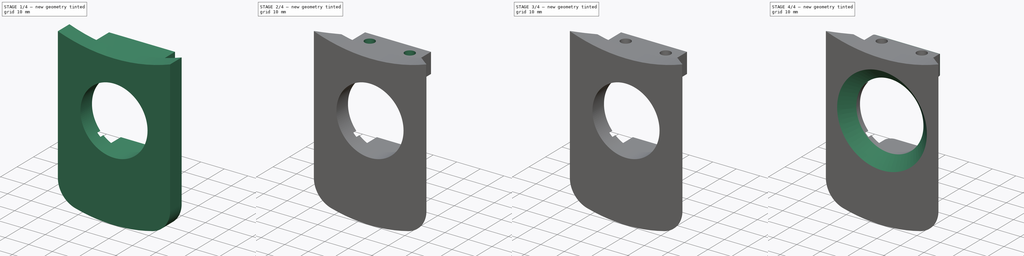
[diagram: build sequence overview — one tinted view per stage of 4, left to right]
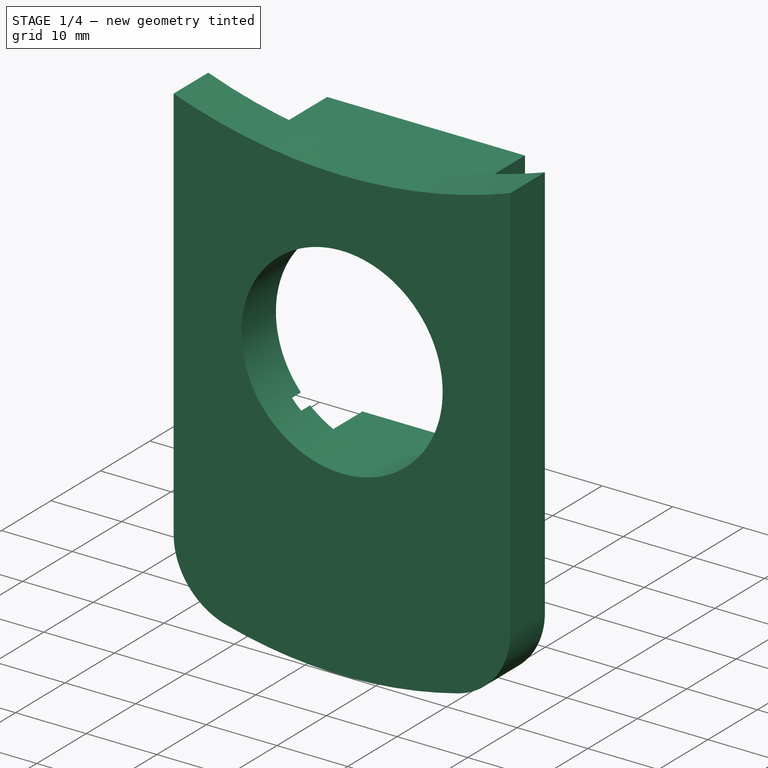
[diagram: stage 1 of 4 — iso view after this stage's code; geometry added in this stage tinted green]
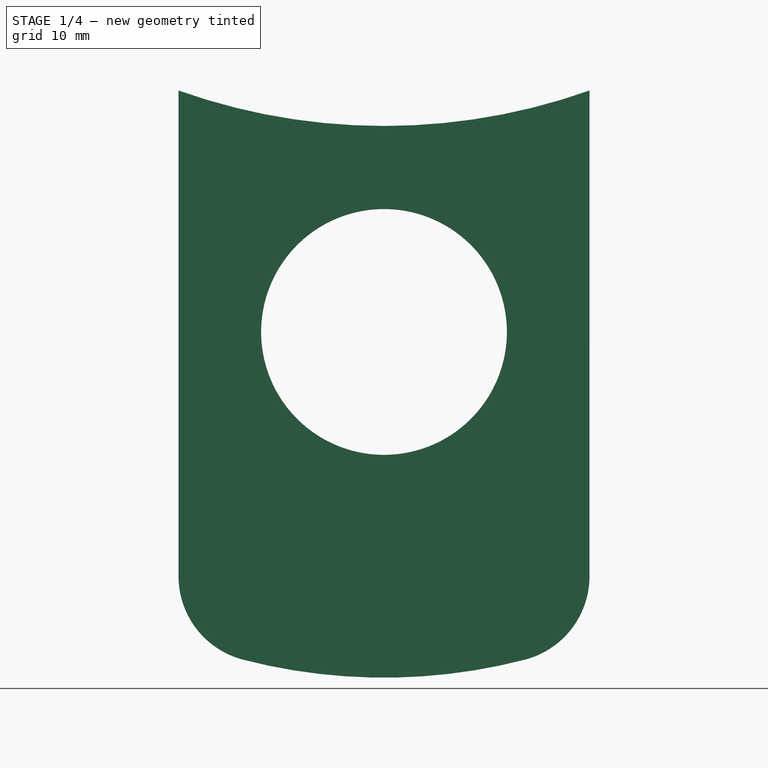
[diagram: stage 1 of 4 — front view after this stage's code; geometry added in this stage tinted green]
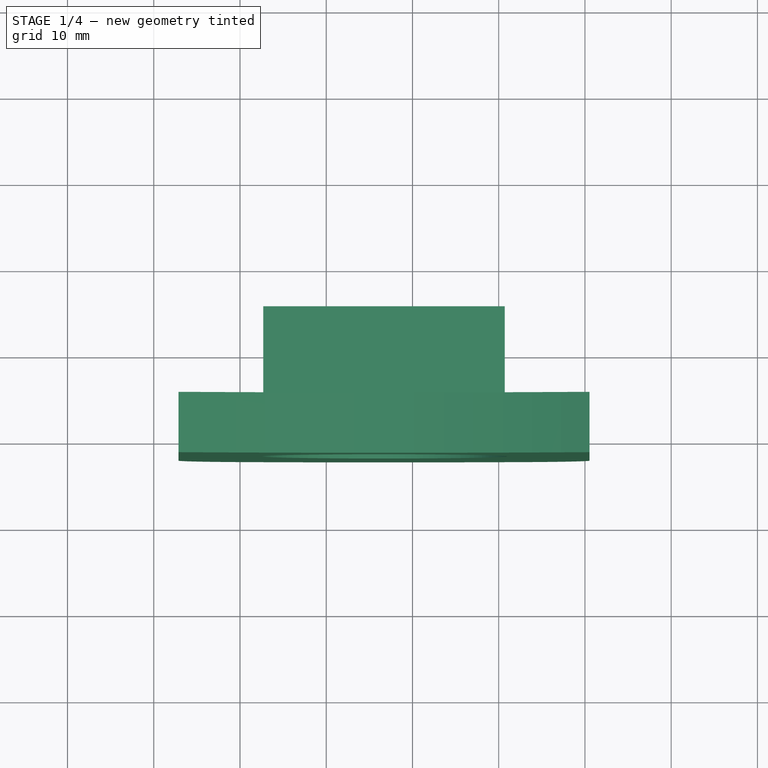
[diagram: stage 1 of 4 — top view after this stage's code; geometry added in this stage tinted green]
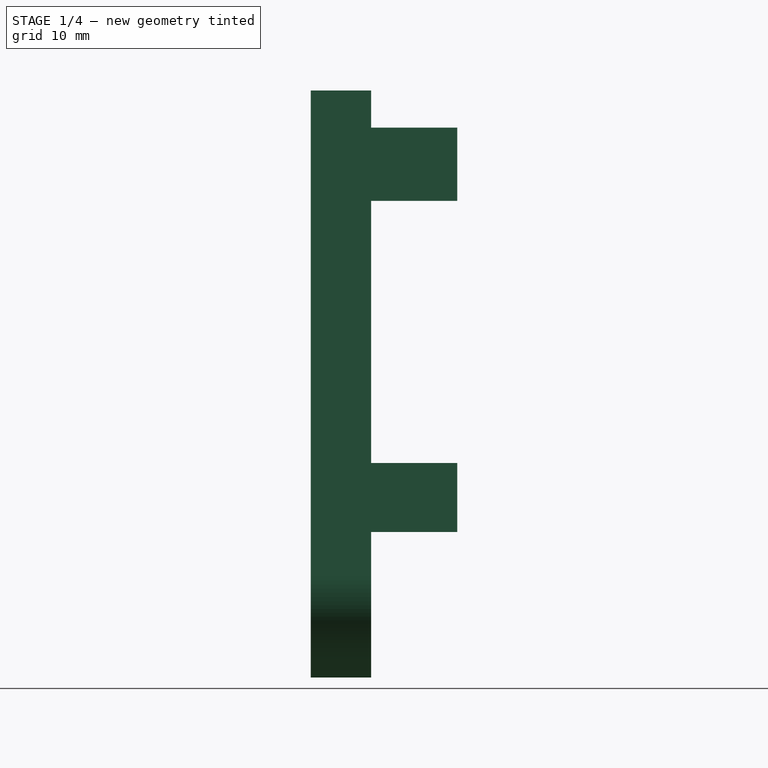
[diagram: stage 1 of 4 — right view after this stage's code; geometry added in this stage tinted green]
FCSTD DOCUMENT  (FreeCAD 2023.811R14555 (Git shallow))
Label: MantisFrontPlate_v3
License: All rights reserved
objects: Part::Feature×63, App::Link×42, App::Part×16, Sketcher::SketchObject×8, PartDesign::Pocket×6, PartDesign::Chamfer×3, PartDesign::SubShapeBinder×2, PartDesign::Pad×2, Part::SubShapeBinder×1, PartDesign::Plane×1, PartDesign::Point×1, PartDesign::Fillet×1, PartDesign::Body×1
note: 121 computed .brp shape members not serialized (recipe doc carries the construction recipe); baked Part::Feature solids carry a one-line shape summary decoded from their .brp

FEATURE [Part::Feature] Solid  label="0"
  InvalidShape = false
  Placement = pos=(-53.2558,-1.776e-13,-2.7501) rot=(0,0,1;0rad)
  TreeRank = 12
  ValidateShape = false
  shape: bbox 45 x 17.4 x 15 mm, 83 faces (baked)
FEATURE [Part::Feature] Solid001  label="0 (2)"
  InvalidShape = false
  Placement = pos=(-17.5188,-1.421e-13,21.1714) rot=(0,-1,0;0.087266rad)
  TreeRank = 13
  ValidateShape = false
  shape: bbox 34.02 x 17.4 x 21.19 mm, 92 faces (baked)
FEATURE [Part::Feature] Solid002  label="0 (3)"
  InvalidShape = false
  Placement = pos=(-43.5707,-1.776e-13,-62.3908) rot=(0,1,0;0.366519rad)
  TreeRank = 14
  ValidateShape = false
  shape: bbox 25.82 x 17.4 x 31.82 mm, 92 faces (baked)
FEATURE [Part::Feature] Solid003  label="0 (4)"
  InvalidShape = false
  Placement = pos=(-49.6833,-2.487e-13,-74.6632) rot=(0,1,0;0.436332rad)
  TreeRank = 15
  ValidateShape = false
  shape: bbox 24.52 x 17.4 x 32.59 mm, 92 faces (baked)
FEATURE [Part::Feature] Solid004  label="0 (5)"
  InvalidShape = false
  Placement = pos=(1e-06,-7.11e-14,6) rot=(0,0,1;0rad)
  TreeRank = 16
  ValidateShape = false
  shape: bbox 35 x 17.4 x 15 mm, 92 faces (baked)
FEATURE [Part::Feature] Solid005  label="0 (6)"
  InvalidShape = false
  Placement = pos=(-352.5,-1.066e-13,42) rot=(0,1,0;3.14159rad)
  TreeRank = 17
  ValidateShape = false
  shape: bbox 35 x 17.4 x 15 mm, 92 faces (baked)
FEATURE [Part::Feature] Solid006  label="0 (7)"
  InvalidShape = false
  Placement = pos=(-56.3151,-2.132e-13,-31.8577) rot=(0,1,0;0.20944rad)
  TreeRank = 18
  ValidateShape = false
  shape: bbox 34.56 x 17.4 x 19.16 mm, 92 faces (baked)
FEATURE [Part::Feature] Solid007  label="0 (8)"
  InvalidShape = false
  Placement = pos=(-53.2558,-1.776e-13,-2.7501) rot=(0,0,1;0rad)
  TreeRank = 19
  ValidateShape = false
  shape: bbox 35 x 17.4 x 15 mm, 92 faces (baked)
FEATURE [Part::Feature] Solid008  label="0 (9)"
  InvalidShape = false
  Placement = pos=(-53.2558,-1.776e-13,-2.7501) rot=(0,0,1;0rad)
  TreeRank = 20
  ValidateShape = false
  shape: bbox 35 x 17.4 x 15 mm, 92 faces (baked)
FEATURE [Part::Feature] Solid009  label="0 (10)"
  InvalidShape = false
  Placement = pos=(-53.2558,-1.776e-13,-2.7501) rot=(0,0,1;0rad)
  TreeRank = 21
  ValidateShape = false
  shape: bbox 35 x 17.4 x 15 mm, 92 faces (baked)
FEATURE [Part::Feature] Solid010  label="0 (11)"
  InvalidShape = false
  Placement = pos=(-53.2558,-1.776e-13,-2.7501) rot=(0,0,1;0rad)
  TreeRank = 22
  ValidateShape = false
  shape: bbox 35 x 17.4 x 15 mm, 92 faces (baked)
FEATURE [Part::Feature] Solid011  label="0 (12)"
  InvalidShape = false
  Placement = pos=(-53.2558,-1.776e-13,-2.7501) rot=(0,0,1;0rad)
  TreeRank = 43
  ValidateShape = false
  shape: bbox 35 x 17.4 x 15 mm, 92 faces (baked)
FEATURE [Part::Feature] Solid012  label="0 (13)"
  InvalidShape = false
  Placement = pos=(-53.2558,-1.776e-13,-2.7501) rot=(0,0,1;0rad)
  TreeRank = 44
  ValidateShape = false
  shape: bbox 35 x 17.4 x 15 mm, 92 faces (baked)
FEATURE [Part::Feature] Solid013  label="0 (14)"
  InvalidShape = false
  Placement = pos=(-53.2558,-1.776e-13,-2.7501) rot=(0,0,1;0rad)
  TreeRank = 45
  ValidateShape = false
  shape: bbox 35 x 17.4 x 15 mm, 92 faces (baked)
FEATURE [App::Part] Part  label="Cable Chain"
  ClaimAllChildren = false
  ExportMode = 1
  Group = -> [Solid,Solid001,Solid002,Solid003,Solid004,Solid005,Solid006,Solid007,Solid008,Solid009,Solid010,Solid011,Solid012,Solid013]
  Origin = -> Origin
  Placement = pos=(268.448,178.5,131.748) rot=(0,0,1;0rad)
  TreeRank = 47
  _ExportChildren = -> [Solid,Solid001,Solid002,Solid003,Solid004,Solid005,Solid006,Solid007,Solid008,Solid009,Solid010,Solid011,Solid012,Solid013]
  _GroupVersion = 1
FEATURE [Part::Feature] Solid014  label="MGN9H - Carriage (9)"
  InvalidShape = false
  Placement = pos=(148.468,205.048,-180.957) rot=(0.57735,0.57735,0.57735;4.18879rad)
  TreeRank = 48
  ValidateShape = false
  shape: bbox 8 x 29.9 x 20 mm, 37 faces (baked)
FEATURE [Part::Feature] Solid015  label="MGN9H - Carriage (1) (1)"
  InvalidShape = false
  Placement = pos=(148.468,205.048,-180.957) rot=(0.57735,0.57735,0.57735;4.18879rad)
  TreeRank = 49
  ValidateShape = false
  shape: bbox 7.7 x 4.1 x 20 mm, 21 faces (baked)
FEATURE [Part::Feature] Solid016  label="MGN9H - Carriage (2) (1)"
  InvalidShape = false
  Placement = pos=(148.468,205.048,-180.957) rot=(0.57735,0.57735,0.57735;4.18879rad)
  TreeRank = 50
  ValidateShape = false
  shape: bbox 2.608 x 1.288 x 2.608 mm, 15 faces (baked)
FEATURE [Part::Feature] Solid017  label="MGN9H - Carriage (3) (1)"
  InvalidShape = false
  Placement = pos=(148.468,205.048,-180.957) rot=(0.57735,0.57735,0.57735;4.18879rad)
  TreeRank = 51
  ValidateShape = false
  shape: bbox 2.608 x 1.288 x 2.608 mm, 15 faces (baked)
FEATURE [Part::Feature] Solid018  label="MGN9H - Carriage (4) (1)"
  InvalidShape = false
  Placement = pos=(148.468,205.048,-180.957) rot=(0.57735,0.57735,0.57735;4.18879rad)
  TreeRank = 52
  ValidateShape = false
  shape: bbox 7.7 x 0.9 x 20 mm, 53 faces (baked)
FEATURE [Part::Feature] Solid019  label="MGN9H - Carriage (5) (1)"
  InvalidShape = false
  Placement = pos=(148.468,205.048,-180.957) rot=(0.57735,0.57735,0.57735;4.18879rad)
  TreeRank = 53
  ValidateShape = false
  shape: bbox 7.7 x 4.1 x 20 mm, 21 faces (baked)
FEATURE [Part::Feature] Solid020  label="MGN9H - Carriage (6) (1)"
  InvalidShape = false
  Placement = pos=(148.468,205.048,-180.957) rot=(0.57735,0.57735,0.57735;4.18879rad)
  TreeRank = 54
  ValidateShape = false
  shape: bbox 7.7 x 0.9 x 20 mm, 53 faces (baked)
FEATURE [Part::Feature] Solid021  label="MGN9H - Carriage (7) (1)"
  InvalidShape = false
  Placement = pos=(148.468,205.048,-180.957) rot=(0.57735,0.57735,0.57735;4.18879rad)
  TreeRank = 55
  ValidateShape = false
  shape: bbox 2.608 x 1.288 x 2.608 mm, 15 faces (baked)
FEATURE [Part::Feature] Solid022  label="MGN9H - Carriage (8) (1)"
  InvalidShape = false
  Placement = pos=(148.468,205.048,-180.957) rot=(0.57735,0.57735,0.57735;4.18879rad)
  TreeRank = 56
  ValidateShape = false
  shape: bbox 2.608 x 1.288 x 2.608 mm, 15 faces (baked)
FEATURE [App::Part] Part001  label="MGN9H (1) (1)"
  ClaimAllChildren = false
  ExportMode = 1
  Group = -> [Solid014,Solid015,Solid016,Solid017,Solid018,Solid019,Solid020,Solid021,Solid022]
  Origin = -> Origin001
  Placement = pos=(-205.048,-365.757,144.468) rot=(0.57735,0.57735,-0.57735;2.0944rad)
  TreeRank = 58
  _ExportChildren = -> [Solid014,Solid015,Solid016,Solid017,Solid018,Solid019,Solid020,Solid021,Solid022]
  _GroupVersion = 1
FEATURE [Part::Feature] Compound  label="GT2 20T Idler Gates v2"
  InvalidShape = false
  Placement = pos=(14.6742,-152.69,-4.7) rot=(0.57735,-0.57735,0.57735;2.0944rad)
  TreeRank = 59
  ValidateShape = false
  shape: bbox 15 x 15 x 10 mm, 107 faces, 3 solids (baked)
FEATURE [Part::Feature] Solid023  label="M3x20 SHCS (2)"
  InvalidShape = false
  Placement = pos=(-8,-177.3,-25) rot=(0,-1,0;1.5708rad)
  TreeRank = 60
  ValidateShape = false
  shape: bbox 5.5 x 5.5 x 19 mm, 21 faces (baked)
FEATURE [Part::Feature] Solid024  label="M5x40 SHCS (2)"
  InvalidShape = false
  Placement = pos=(-13.4262,-163.675,28) rot=(0,1,0;1.5708rad)
  TreeRank = 61
  ValidateShape = false
  shape: bbox 8.5 x 8.5 x 45 mm, 21 faces (baked)
FEATURE [App::Link] Link  label="M5x40 SHCS (2)"
  AutoLinkLabel = true
  AutoPlacement = true
  LinkPlacement = pos=(-0.537913,-148.35,28) rot=(0,1,0;1.5708rad)
  LinkedObject = -> Solid024
  Placement = pos=(-0.537913,-148.35,28) rot=(0,1,0;1.5708rad)
  SyncGroupVisibility = false
  TreeRank = 62
  _LinkVersion = 1
FEATURE [Part::Feature] Solid025  label="M5x30 BHCS (1)"
  InvalidShape = false
  Placement = pos=(-15.95,-148.35,-24.75) rot=(0,-1,0;1.5708rad)
  TreeRank = 84
  ValidateShape = false
  shape: bbox 9.567 x 9.507 x 33.31 mm, 21 faces (baked)
FEATURE [Part::Feature] Solid026  label="M5 1mm Spacer (1)"
  InvalidShape = false
  Placement = pos=(6.54632e-08,-1.10001,15) rot=(0,0.707107,0.707107;3.14159rad)
  TreeRank = 85
  ValidateShape = false
  shape: bbox 10 x 1 x 10 mm, 4 faces (baked)
FEATURE [App::Link] Link001  label="M5 1mm Spacer (1)"
  AutoLinkLabel = true
  AutoPlacement = true
  LinkPlacement = pos=(3.27347e-08,7.89999,15) rot=(0,0.707107,0.707107;3.14159rad)
  LinkedObject = -> Solid026
  Placement = pos=(3.27347e-08,7.89999,15) rot=(0,0.707107,0.707107;3.14159rad)
  SyncGroupVisibility = false
  TreeRank = 86
  _LinkVersion = 1
FEATURE [Part::Feature] Solid027  label="F695 ZZ (1)"
  InvalidShape = false
  Placement = pos=(3.27347e-08,7.99999,15) rot=(0,0,1;3.14159rad)
  TreeRank = 87
  ValidateShape = false
  shape: bbox 15 x 4 x 15 mm, 24 faces (baked)
FEATURE [App::Link] Link002  label="F695 ZZ (1)"
  AutoLinkLabel = true
  AutoPlacement = true
  LinkPlacement = pos=(3.27334e-08,-1.3785e-05,15) rot=(-1.29145,-2e-06,-5e-06;0rad)
  LinkedObject = -> Solid027
  Placement = pos=(3.27334e-08,-1.3785e-05,15) rot=(-1.29145,-2e-06,-5e-06;0rad)
  SyncGroupVisibility = false
  TreeRank = 88
  _LinkVersion = 1
FEATURE [App::Part] Part002  label="Idler Assembly (1)"
  ClaimAllChildren = false
  ExportMode = 1
  Group = -> [Solid026,Link001,Solid027,Link002]
  Origin = -> Origin002
  Placement = pos=(1.51418,-150.85,13) rot=(1,0,0;1.5708rad)
  TreeRank = 90
  _ExportChildren = -> [Solid026,Link001,Solid027,Link002]
  _GroupVersion = 1
FEATURE [App::Link] Link003  label="M5x40 SHCS (2)"
  AutoLinkLabel = true
  AutoPlacement = true
  LinkPlacement = pos=(1.51418,-165.85,28) rot=(0,1,0;1.5708rad)
  LinkedObject = -> Solid024
  Placement = pos=(1.51418,-165.85,28) rot=(0,1,0;1.5708rad)
  SyncGroupVisibility = false
  TreeRank = 91
  _LinkVersion = 1
FEATURE [App::Link] Link004  label="M3x20 SHCS (2)"
  AutoLinkLabel = true
  AutoPlacement = true
  LinkPlacement = pos=(-8,-192.3,-25) rot=(0,-1,0;1.5708rad)
  LinkedObject = -> Solid023
  Placement = pos=(-8,-192.3,-25) rot=(0,-1,0;1.5708rad)
  SyncGroupVisibility = false
  TreeRank = 92
  _LinkVersion = 1
FEATURE [Part::Feature] Compound001  label="GT2 20T Idler v3 (2)"
  InvalidShape = false
  Placement = pos=(14.6742,-152.69,-4.14998) rot=(0,-1,0;1.5708rad)
  TreeRank = 93
  ValidateShape = false
  shape: bbox 18 x 18 x 8.6 mm, 109 faces, 3 solids (baked)
FEATURE [App::Link] Link005  label="M5x40 SHCS (2)"
  AutoLinkLabel = true
  AutoPlacement = true
  LinkPlacement = pos=(14.6742,-152.69,28) rot=(0,1,0;1.5708rad)
  LinkedObject = -> Solid024
  Placement = pos=(14.6742,-152.69,28) rot=(0,1,0;1.5708rad)
  SyncGroupVisibility = false
  TreeRank = 94
  _LinkVersion = 1
FEATURE [Part::Feature] Solid028  label="M5 Hex Nut"
  InvalidShape = false
  Placement = pos=(-0.537913,-148.35,-17.1746) rot=(0.258819,0.965926,0;3.14159rad)
  TreeRank = 95
  ValidateShape = false
  shape: bbox 9.238 x 9.238 x 4.4 mm, 23 faces (baked)
FEATURE [App::Link] Link006  label="M5 Hex Nut"
  AutoLinkLabel = true
  AutoPlacement = true
  LinkPlacement = pos=(-13.4262,-163.675,-17.4) rot=(0.707107,0.707107,0;3.14159rad)
  LinkedObject = -> Solid028
  Placement = pos=(-13.4262,-163.675,-17.4) rot=(0.707107,0.707107,0;3.14159rad)
  SyncGroupVisibility = false
  TreeRank = 96
  _LinkVersion = 1
FEATURE [App::Link] Link007  label="M5 Hex Nut"
  AutoLinkLabel = true
  AutoPlacement = true
  LinkPlacement = pos=(1.51418,-165.85,-17.4) rot=(0.707107,0.707107,0;3.14159rad)
  LinkedObject = -> Solid028
  Placement = pos=(1.51418,-165.85,-17.4) rot=(0.707107,0.707107,0;3.14159rad)
  SyncGroupVisibility = false
  TreeRank = 97
  _LinkVersion = 1
FEATURE [Part::Feature] Solid029  label="M5x10 BHCS"
  InvalidShape = false
  Placement = pos=(-15.95,-132.85,30.75) rot=(0.039204,0.998462,-0.039204;1.57234rad)
  TreeRank = 98
  ValidateShape = false
  shape: bbox 9.862 x 9.514 x 13.31 mm, 21 faces (baked)
FEATURE [App::Link] Link008  label="M5x10 BHCS"
  AutoLinkLabel = true
  AutoPlacement = true
  LinkPlacement = pos=(-15.95,-148.35,30.75) rot=(0.643652,-0.414034,-0.643652;3.92668rad)
  LinkedObject = -> Solid029
  Placement = pos=(-15.95,-148.35,30.75) rot=(0.643652,-0.414034,-0.643652;3.92668rad)
  SyncGroupVisibility = false
  TreeRank = 99
  _LinkVersion = 1
FEATURE [App::Link] Link009  label="M3x20 SHCS (2)"
  AutoLinkLabel = true
  AutoPlacement = true
  LinkPlacement = pos=(8,-177.3,-25) rot=(0,-1,0;1.5708rad)
  LinkedObject = -> Solid023
  Placement = pos=(8,-177.3,-25) rot=(0,-1,0;1.5708rad)
  SyncGroupVisibility = false
  TreeRank = 100
  _LinkVersion = 1
FEATURE [App::Link] Link010  label="M3x20 SHCS (2)"
  AutoLinkLabel = true
  AutoPlacement = true
  LinkPlacement = pos=(8,-192.3,-25) rot=(0,-1,0;1.5708rad)
  LinkedObject = -> Solid023
  Placement = pos=(8,-192.3,-25) rot=(0,-1,0;1.5708rad)
  SyncGroupVisibility = false
  TreeRank = 101
  _LinkVersion = 1
FEATURE [Part::Feature] Compound002  label="COMPOUND"
  InvalidShape = false
  TreeRank = 102
  ValidateShape = false
  shape: bbox 49.73 x 71.96 x 53.25 mm, 391 faces, 2 solids (baked)
FEATURE [App::Part] Part003  label="XY Joint - Left"
  ClaimAllChildren = false
  ExportMode = 1
  Group = -> [Part001,Compound,Solid023,Solid024,Link,Solid025,Part002,Link003,Link004,Compound001,Link005,Solid028,Link006,Link007,Solid029,Link008,Link009,Link010,Compound002]
  Origin = -> Origin003
  Placement = pos=(116.8,167.038,99.7) rot=(0,0,-1;1.5708rad)
  TreeRank = 104
  _ExportChildren = -> [Part001,Compound,Solid023,Solid024,Link,Solid025,Part002,Link003,Link004,Compound001,Link005,Solid028,Link006,Link007,Solid029,Link008,Link009,Link010,Compound002]
  _GroupVersion = 1
FEATURE [Part::Feature] Solid030  label="0 (1)"
  InvalidShape = false
  Placement = pos=(24.0294,36.3772,80.8551) rot=(0,0,1;3.14159rad)
  TreeRank = 153
  ValidateShape = false
  shape: bbox 31.5 x 17.4 x 15 mm, 52 faces (baked)
FEATURE [Part::Feature] Solid031  label="M3 Threaded Insert (1)"
  InvalidShape = false
  Placement = pos=(166.529,31.3772,105.505) rot=(0,0,1;1.5708rad)
  TreeRank = 154
  ValidateShape = false
  shape: bbox 5.358 x 5.329 x 3.855 mm, 117 faces (baked)
FEATURE [App::Link] Link011  label="M3 Threaded Insert (1)"
  AutoLinkLabel = true
  AutoPlacement = true
  LinkPlacement = pos=(158.529,31.3772,105.505) rot=(0,0,1;1.5708rad)
  LinkedObject = -> Solid031
  Placement = pos=(158.529,31.3772,105.505) rot=(0,0,1;1.5708rad)
  SyncGroupVisibility = false
  TreeRank = 155
  _LinkVersion = 1
FEATURE [Part::Feature] Solid032  label="M3x6 BHCS"
  InvalidShape = false
  Placement = pos=(166.529,31.3772,113.205) rot=(0,0,1;3.14159rad)
  TreeRank = 156
  ValidateShape = false
  shape: bbox 5.74 x 5.704 x 8.027 mm, 20 faces (baked)
FEATURE [App::Link] Link012  label="M3x6 BHCS"
  AutoLinkLabel = true
  AutoPlacement = true
  LinkPlacement = pos=(158.529,31.3772,113.205) rot=(0,0,1;3.14159rad)
  LinkedObject = -> Solid032
  Placement = pos=(158.529,31.3772,113.205) rot=(0,0,1;3.14159rad)
  SyncGroupVisibility = false
  TreeRank = 157
  _LinkVersion = 1
FEATURE [Part::Feature] Solid033  label="SOLID"
  InvalidShape = false
  TreeRank = 158
  ValidateShape = false
  shape: bbox 22 x 68.63 x 41.01 mm, 122 faces (baked)
FEATURE [App::Part] Part004  label="XY Cable Chain Bridge - IGUS"
  ClaimAllChildren = false
  ExportMode = 1
  Group = -> [Solid030,Solid031,Link011,Solid032,Link012,Solid033]
  Origin = -> Origin004
  Placement = pos=(-180.479,-41.3774,-40.3551) rot=(0,0,1;0rad)
  TreeRank = 160
  _ExportChildren = -> [Solid030,Solid031,Link011,Solid032,Link012,Solid033]
  _GroupVersion = 1
FEATURE [App::Link] Link013  label="GT2 20T Idler Gates v2"
  AutoLinkLabel = true
  AutoPlacement = true
  LinkPlacement = pos=(14.6742,-42.11,5.3) rot=(-0.57735,0.57735,-0.57735;4.18879rad)
  LinkedObject = -> Compound
  Placement = pos=(14.6742,-42.11,5.3) rot=(-0.57735,0.57735,-0.57735;4.18879rad)
  SyncGroupVisibility = false
  TreeRank = 161
  _LinkVersion = 1
FEATURE [App::Link] Link014  label="GT2 20T Idler v3 (2)"
  AutoLinkLabel = true
  AutoPlacement = true
  LinkPlacement = pos=(14.6742,-42.11,5.85002) rot=(0,-1,0;1.5708rad)
  LinkedObject = -> Compound001
  Placement = pos=(14.6742,-42.11,5.85002) rot=(0,-1,0;1.5708rad)
  SyncGroupVisibility = false
  TreeRank = 162
  _LinkVersion = 1
FEATURE [App::Link] Link015  label="M5 Hex Nut"
  AutoLinkLabel = true
  AutoPlacement = true
  LinkPlacement = pos=(-0.537913,-46.45,-17.2) rot=(0.707107,0.707107,0;3.14159rad)
  LinkedObject = -> Solid028
  Placement = pos=(-0.537913,-46.45,-17.2) rot=(0.707107,0.707107,0;3.14159rad)
  SyncGroupVisibility = false
  TreeRank = 163
  _LinkVersion = 1
FEATURE [Part::Feature] Solid034  label="M5x16 BHCS (2)"
  InvalidShape = false
  Placement = pos=(-15.95,-46.45,35.75) rot=(0,1,0;1.5708rad)
  TreeRank = 164
  ValidateShape = false
  shape: bbox 9.567 x 9.507 x 19.31 mm, 21 faces (baked)
FEATURE [App::Link] Link016  label="M5x16 BHCS (2)"
  AutoLinkLabel = true
  AutoPlacement = true
  LinkPlacement = pos=(-15.95,-61.95,35.75) rot=(0.612212,-0.500393,-0.612212;4.06952rad)
  LinkedObject = -> Solid034
  Placement = pos=(-15.95,-61.95,35.75) rot=(0.612212,-0.500393,-0.612212;4.06952rad)
  SyncGroupVisibility = false
  TreeRank = 165
  _LinkVersion = 1
FEATURE [App::Link] Link017  label="M5x30 BHCS (1)"
  AutoLinkLabel = true
  AutoPlacement = true
  LinkPlacement = pos=(-15.95,-46.45,-24.75) rot=(0,-1,0;1.5708rad)
  LinkedObject = -> Solid025
  Placement = pos=(-15.95,-46.45,-24.75) rot=(0,-1,0;1.5708rad)
  SyncGroupVisibility = false
  TreeRank = 166
  _LinkVersion = 1
FEATURE [App::Link] Link018  label="M5x40 SHCS (2)"
  AutoLinkLabel = true
  AutoPlacement = true
  LinkPlacement = pos=(1.51418,-28.95,28) rot=(0,1,0;1.5708rad)
  LinkedObject = -> Solid024
  Placement = pos=(1.51418,-28.95,28) rot=(0,1,0;1.5708rad)
  SyncGroupVisibility = false
  TreeRank = 167
  _LinkVersion = 1
FEATURE [App::Link] Link019  label="M3x20 SHCS (2)"
  AutoLinkLabel = true
  AutoPlacement = true
  LinkPlacement = pos=(-8,-17.5,-25) rot=(0,-1,0;1.5708rad)
  LinkedObject = -> Solid023
  Placement = pos=(-8,-17.5,-25) rot=(0,-1,0;1.5708rad)
  SyncGroupVisibility = false
  TreeRank = 168
  _LinkVersion = 1
FEATURE [App::Link] Link020  label="M5 Hex Nut"
  AutoLinkLabel = true
  AutoPlacement = true
  LinkPlacement = pos=(1.51418,-28.95,-17.1746) rot=(0.258819,0.965926,0;3.14159rad)
  LinkedObject = -> Solid028
  Placement = pos=(1.51418,-28.95,-17.1746) rot=(0.258819,0.965926,0;3.14159rad)
  SyncGroupVisibility = false
  TreeRank = 169
  _LinkVersion = 1
FEATURE [App::Link] Link021  label="M5x40 SHCS (2)"
  AutoLinkLabel = true
  AutoPlacement = true
  LinkPlacement = pos=(-0.537913,-46.45,28.2) rot=(0,1,0;1.5708rad)
  LinkedObject = -> Solid024
  Placement = pos=(-0.537913,-46.45,28.2) rot=(0,1,0;1.5708rad)
  SyncGroupVisibility = false
  TreeRank = 170
  _LinkVersion = 1
FEATURE [App::Link] Link022  label="M5x40 SHCS (2)"
  AutoLinkLabel = true
  AutoPlacement = true
  LinkPlacement = pos=(-13.4262,-31.125,28.2) rot=(0,1,0;1.5708rad)
  LinkedObject = -> Solid024
  Placement = pos=(-13.4262,-31.125,28.2) rot=(0,1,0;1.5708rad)
  SyncGroupVisibility = false
  TreeRank = 171
  _LinkVersion = 1
FEATURE [App::Link] Link023  label="M3x20 SHCS (2)"
  AutoLinkLabel = true
  AutoPlacement = true
  LinkPlacement = pos=(-8,-2.5,-25) rot=(0,-1,0;1.5708rad)
  LinkedObject = -> Solid023
  Placement = pos=(-8,-2.5,-25) rot=(0,-1,0;1.5708rad)
  SyncGroupVisibility = false
  TreeRank = 172
  _LinkVersion = 1
FEATURE [App::Link] Link024  label="M5 Hex Nut"
  AutoLinkLabel = true
  AutoPlacement = true
  LinkPlacement = pos=(-13.4262,-31.125,-17.2) rot=(0.707107,0.707107,0;3.14159rad)
  LinkedObject = -> Solid028
  Placement = pos=(-13.4262,-31.125,-17.2) rot=(0.707107,0.707107,0;3.14159rad)
  SyncGroupVisibility = false
  TreeRank = 173
  _LinkVersion = 1
FEATURE [App::Link] Link025  label="M5 1mm Spacer (1)"
  AutoLinkLabel = true
  AutoPlacement = true
  LinkPlacement = pos=(6.54633e-08,-1.10001,15) rot=(0,0.707107,0.707107;3.14159rad)
  LinkedObject = -> Solid026
  Placement = pos=(6.54633e-08,-1.10001,15) rot=(0,0.707107,0.707107;3.14159rad)
  SyncGroupVisibility = false
  TreeRank = 174
  _LinkVersion = 1
FEATURE [App::Link] Link026  label="M5 1mm Spacer (1)"
  AutoLinkLabel = true
  AutoPlacement = true
  LinkPlacement = pos=(3.27348e-08,7.89999,15) rot=(0,0.707107,0.707107;3.14159rad)
  LinkedObject = -> Solid026
  Placement = pos=(3.27348e-08,7.89999,15) rot=(0,0.707107,0.707107;3.14159rad)
  SyncGroupVisibility = false
  TreeRank = 175
  _LinkVersion = 1
FEATURE [App::Link] Link027  label="F695 ZZ (1)"
  AutoLinkLabel = true
  AutoPlacement = true
  LinkPlacement = pos=(3.27349e-08,7.99999,15) rot=(0,0,1;3.14159rad)
  LinkedObject = -> Solid027
  Placement = pos=(3.27349e-08,7.99999,15) rot=(0,0,1;3.14159rad)
  SyncGroupVisibility = false
  TreeRank = 176
  _LinkVersion = 1
FEATURE [App::Link] Link028  label="F695 ZZ (1)"
  AutoLinkLabel = true
  AutoPlacement = true
  LinkPlacement = pos=(3.27334e-08,-1.3785e-05,15) rot=(-1.05447,-2e-06,-4e-06;0rad)
  LinkedObject = -> Solid027
  Placement = pos=(3.27334e-08,-1.3785e-05,15) rot=(-1.05447,-2e-06,-4e-06;0rad)
  SyncGroupVisibility = false
  TreeRank = 177
  _LinkVersion = 1
FEATURE [App::Part] Part005  label="Idler Assembly (1)"
  ClaimAllChildren = false
  ExportMode = 1
  Group = -> [Link025,Link026,Link027,Link028]
  Origin = -> Origin005
  Placement = pos=(1.51418,-13.95,3.00002) rot=(1,0,0;1.5708rad)
  TreeRank = 179
  _ExportChildren = -> [Link025,Link026,Link027,Link028]
  _GroupVersion = 1
FEATURE [App::Link] Link029  label="M5x40 SHCS (2)"
  AutoLinkLabel = true
  AutoPlacement = true
  LinkPlacement = pos=(14.6742,-42.11,28) rot=(0,1,0;1.5708rad)
  LinkedObject = -> Solid024
  Placement = pos=(14.6742,-42.11,28) rot=(0,1,0;1.5708rad)
  SyncGroupVisibility = false
  TreeRank = 180
  _LinkVersion = 1
FEATURE [App::Link] Link030  label="MGN9H - Carriage (9)"
  AutoLinkLabel = true
  AutoPlacement = true
  LinkPlacement = pos=(148.468,205.048,-180.957) rot=(0.57735,0.57735,0.57735;4.18879rad)
  LinkedObject = -> Solid014
  Placement = pos=(148.468,205.048,-180.957) rot=(0.57735,0.57735,0.57735;4.18879rad)
  SyncGroupVisibility = false
  TreeRank = 181
  _LinkVersion = 1
FEATURE [App::Link] Link031  label="MGN9H - Carriage (1) (1)"
  AutoLinkLabel = true
  AutoPlacement = true
  LinkPlacement = pos=(148.468,205.048,-180.957) rot=(0.57735,0.57735,0.57735;4.18879rad)
  LinkedObject = -> Solid015
  Placement = pos=(148.468,205.048,-180.957) rot=(0.57735,0.57735,0.57735;4.18879rad)
  SyncGroupVisibility = false
  TreeRank = 182
  _LinkVersion = 1
FEATURE [App::Link] Link032  label="MGN9H - Carriage (2) (1)"
  AutoLinkLabel = true
  AutoPlacement = true
  LinkPlacement = pos=(148.468,205.048,-180.957) rot=(0.57735,0.57735,0.57735;4.18879rad)
  LinkedObject = -> Solid016
  Placement = pos=(148.468,205.048,-180.957) rot=(0.57735,0.57735,0.57735;4.18879rad)
  SyncGroupVisibility = false
  TreeRank = 183
  _LinkVersion = 1
FEATURE [App::Link] Link033  label="MGN9H - Carriage (3) (1)"
  AutoLinkLabel = true
  AutoPlacement = true
  LinkPlacement = pos=(148.468,205.048,-180.957) rot=(0.57735,0.57735,0.57735;4.18879rad)
  LinkedObject = -> Solid017
  Placement = pos=(148.468,205.048,-180.957) rot=(0.57735,0.57735,0.57735;4.18879rad)
  SyncGroupVisibility = false
  TreeRank = 184
  _LinkVersion = 1
FEATURE [App::Link] Link034  label="MGN9H - Carriage (4) (1)"
  AutoLinkLabel = true
  AutoPlacement = true
  LinkPlacement = pos=(148.468,205.048,-180.957) rot=(0.57735,0.57735,0.57735;4.18879rad)
  LinkedObject = -> Solid018
  Placement = pos=(148.468,205.048,-180.957) rot=(0.57735,0.57735,0.57735;4.18879rad)
  SyncGroupVisibility = false
  TreeRank = 185
  _LinkVersion = 1
FEATURE [App::Link] Link035  label="MGN9H - Carriage (5) (1)"
  AutoLinkLabel = true
  AutoPlacement = true
  LinkPlacement = pos=(148.468,205.048,-180.957) rot=(0.57735,0.57735,0.57735;4.18879rad)
  LinkedObject = -> Solid019
  Placement = pos=(148.468,205.048,-180.957) rot=(0.57735,0.57735,0.57735;4.18879rad)
  SyncGroupVisibility = false
  TreeRank = 186
  _LinkVersion = 1
FEATURE [App::Link] Link036  label="MGN9H - Carriage (6) (1)"
  AutoLinkLabel = true
  AutoPlacement = true
  LinkPlacement = pos=(148.468,205.048,-180.957) rot=(0.57735,0.57735,0.57735;4.18879rad)
  LinkedObject = -> Solid020
  Placement = pos=(148.468,205.048,-180.957) rot=(0.57735,0.57735,0.57735;4.18879rad)
  SyncGroupVisibility = false
  TreeRank = 187
  _LinkVersion = 1
FEATURE [App::Link] Link037  label="MGN9H - Carriage (7) (1)"
  AutoLinkLabel = true
  AutoPlacement = true
  LinkPlacement = pos=(148.468,205.048,-180.957) rot=(0.57735,0.57735,0.57735;4.18879rad)
  LinkedObject = -> Solid021
  Placement = pos=(148.468,205.048,-180.957) rot=(0.57735,0.57735,0.57735;4.18879rad)
  SyncGroupVisibility = false
  TreeRank = 188
  _LinkVersion = 1
FEATURE [App::Link] Link038  label="MGN9H - Carriage (8) (1)"
  AutoLinkLabel = true
  AutoPlacement = true
  LinkPlacement = pos=(148.468,205.048,-180.957) rot=(0.57735,0.57735,0.57735;4.18879rad)
  LinkedObject = -> Solid022
  Placement = pos=(148.468,205.048,-180.957) rot=(0.57735,0.57735,0.57735;4.18879rad)
  SyncGroupVisibility = false
  TreeRank = 189
  _LinkVersion = 1
FEATURE [App::Part] Part006  label="MGN9H (1) (1)"
  ClaimAllChildren = false
  ExportMode = 1
  Group = -> [Link030,Link031,Link032,Link033,Link034,Link035,Link036,Link037,Link038]
  Origin = -> Origin006
  Placement = pos=(-205.048,-190.957,144.468) rot=(0.57735,0.57735,-0.57735;2.0944rad)
  TreeRank = 191
  _ExportChildren = -> [Link030,Link031,Link032,Link033,Link034,Link035,Link036,Link037,Link038]
  _GroupVersion = 1
FEATURE [App::Link] Link039  label="M3 Threaded Insert (1)"
  AutoLinkLabel = true
  AutoPlacement = true
  LinkPlacement = pos=(166.529,31.3772,105.505) rot=(0,0,1;1.5708rad)
  LinkedObject = -> Solid031
  Placement = pos=(166.529,31.3772,105.505) rot=(0,0,1;1.5708rad)
  SyncGroupVisibility = false
  TreeRank = 192
  _LinkVersion = 1
FEATURE [App::Link] Link040  label="M3 Threaded Insert (1)"
  AutoLinkLabel = true
  AutoPlacement = true
  LinkPlacement = pos=(158.529,34.8772,105.505) rot=(0,0,1;1.5708rad)
  LinkedObject = -> Solid031
  Placement = pos=(158.529,34.8772,105.505) rot=(0,0,1;1.5708rad)
  SyncGroupVisibility = false
  TreeRank = 193
  _LinkVersion = 1
FEATURE [App::Link] Link041  label="M3 Threaded Insert (1)"
  AutoLinkLabel = true
  AutoPlacement = true
  LinkPlacement = pos=(158.529,27.8772,105.505) rot=(0,0,1;1.5708rad)
  LinkedObject = -> Solid031
  Placement = pos=(158.529,27.8772,105.505) rot=(0,0,1;1.5708rad)
  SyncGroupVisibility = false
  TreeRank = 194
  _LinkVersion = 1
FEATURE [Part::Feature] Solid035  label="SOLID"
  InvalidShape = false
  TreeRank = 195
  ValidateShape = false
  shape: bbox 22 x 68.63 x 41.01 mm, 123 faces (baked)
FEATURE [App::Part] Part007  label="XY Cable Chain Bridge - Generic"
  ClaimAllChildren = false
  ExportMode = 1
  Group = -> [Link039,Link040,Link041,Solid035]
  Origin = -> Origin007
  Placement = pos=(-180.479,-41.3774,-40.3551) rot=(0,0,1;0rad)
  TreeRank = 197
  _ExportChildren = -> [Link039,Link040,Link041,Solid035]
  _GroupVersion = 1
FEATURE [Part::Feature] Compound003  label="COMPOUND"
  InvalidShape = false
  TreeRank = 198
  ValidateShape = false
  shape: bbox 55.46 x 71.96 x 135.8 mm, 402 faces, 2 solids (baked)
FEATURE [App::Part] Part008  label="XY Joint - Right"
  ClaimAllChildren = false
  ExportMode = 1
  Group = -> [Part004,Link013,Link014,Link015,Solid034,Link016,Link017,Link018,Link019,Link020,Link021,Link022,Link023,Link024,Part005,Link029,Part006,Part007,Compound003]
  Origin = -> Origin008
  Placement = pos=(332,167.05,99.7) rot=(0,0,-1;1.5708rad)
  TreeRank = 200
  _ExportChildren = -> [Part004,Link013,Link014,Link015,Solid034,Link016,Link017,Link018,Link019,Link020,Link021,Link022,Link023,Link024,Part005,Link029,Part006,Part007,Compound003]
  _GroupVersion = 1
FEATURE [Part::Feature] Solid036  label="X Rail 2020"
  InvalidShape = false
  Placement = pos=(-27.97,148,156.7) rot=(-0.57735,-0.57735,-0.57735;2.0944rad)
  TreeRank = 218
  ValidateShape = false
  shape: bbox 330 x 20 x 20 mm, 51 faces (baked)
FEATURE [Part::Feature] Solid037  label="MGN12 LINEAR GUIDE RAIL, CONFIGURABLE_200 mm"
  InvalidShape = false
  Placement = pos=(-1.6e-14,-1.78e-14,-1.42e-14) rot=(0,0,1;0rad)
  TreeRank = 219
  ValidateShape = false
  shape: bbox 11.97 x 8 x 300 mm, 72 faces (baked)
FEATURE [App::Part] Part009  label="Linear Rail MGN 12"
  ClaimAllChildren = false
  ExportMode = 1
  Group = -> [Solid037]
  Origin = -> Origin009
  Placement = pos=(176.699,167.5,111.706) rot=(0.707107,0,0.707107;3.14159rad)
  TreeRank = 221
  _ExportChildren = -> [Solid037]
  _GroupVersion = 1
FEATURE [Part::Feature] Compound004  label="MGN12H, LINEAR GUIDE BLOCK v1"
  InvalidShape = false
  Placement = pos=(-40.4,-4.37002e-09,78.8986) rot=(-0.57735,-0.57735,-0.57735;2.0944rad)
  TreeRank = 222
  ValidateShape = false
  shape: bbox 10.01 x 45.61 x 27.01 mm, 294 faces, 9 solids (baked)
FEATURE [App::Part] Part010  label="X Carriage 2.4 v9"
  ClaimAllChildren = false
  ExportMode = 1
  Group = -> [Compound004]
  Origin = -> Origin010
  Placement = pos=(126.699,127.158,32.8014) rot=(0,0,-1;1.5708rad)
  TreeRank = 224
  _ExportChildren = -> [Compound004]
  _GroupVersion = 1
FEATURE [Part::Feature] Solid038  label="SupportPin (1)"
  InvalidShape = false
  Placement = pos=(1.8e-15,0,0) rot=(0,0,1;0rad)
  TreeRank = 225
  ValidateShape = false
  shape: bbox 2.5 x 11.5 x 2.5 mm, 4 faces (baked)
FEATURE [Part::Feature] Solid039  label="SupportPin (2)"
  InvalidShape = false
  Placement = pos=(1.8e-15,0,0) rot=(0,0,1;0rad)
  TreeRank = 226
  ValidateShape = false
  shape: bbox 2.5 x 11.5 x 2.5 mm, 4 faces (baked)
FEATURE [Part::Feature] Solid040  label="SupportPin (3)"
  InvalidShape = false
  Placement = pos=(1.8e-15,0,0) rot=(0,0,1;0rad)
  TreeRank = 227
  ValidateShape = false
  shape: bbox 2.5 x 11.5 x 2.5 mm, 4 faces (baked)
FEATURE [Part::Feature] Solid041  label="TubeHeatSink"
  InvalidShape = false
  Placement = pos=(1.8e-15,0,0) rot=(0,0,1;0rad)
  TreeRank = 228
  ValidateShape = false
  shape: bbox 10 x 12 x 10 mm, 30 faces (baked)
FEATURE [Part::Feature] Solid042  label="HeatBreak"
  InvalidShape = false
  Placement = pos=(1.8e-15,0,0) rot=(0,0,1;0rad)
  TreeRank = 229
  ValidateShape = false
  shape: bbox 9 x 13.5 x 9 mm, 9 faces (baked)
FEATURE [Part::Feature] Solid043  label="SupportPin"
  InvalidShape = false
  Placement = pos=(1.8e-15,0,0) rot=(0,0,1;0rad)
  TreeRank = 230
  ValidateShape = false
  shape: bbox 2.5 x 11.5 x 2.5 mm, 4 faces (baked)
FEATURE [Part::Feature] Solid044  label="Tube"
  InvalidShape = false
  Placement = pos=(1.8e-15,0,0) rot=(0,0,1;0rad)
  TreeRank = 231
  ValidateShape = false
  shape: bbox 2.5 x 32 x 2.5 mm, 4 faces (baked)
FEATURE [Part::Feature] Solid045  label="SOLID"
  InvalidShape = false
  TreeRank = 232
  ValidateShape = false
  shape: bbox 22.21 x 26.01 x 22.21 mm, 259 faces (baked)
FEATURE [App::Part] Part011  label="Heatsink"
  ClaimAllChildren = false
  ExportMode = 1
  Group = -> [Solid038,Solid039,Solid040,Solid041,Solid042,Solid043,Solid044,Solid045]
  Origin = -> Origin011
  Placement = pos=(1.8e-15,0,0) rot=(0,0,1;0rad)
  TreeRank = 234
  _ExportChildren = -> [Solid038,Solid039,Solid040,Solid041,Solid042,Solid043,Solid044,Solid045]
  _GroupVersion = 1
FEATURE [Part::Feature] Solid046  label="Nozzle"
  InvalidShape = false
  Placement = pos=(5.33e-14,-8.50002,1.78e-14) rot=(-0.280984,0.678619,0.678619;2.59375rad)
  TreeRank = 239
  ValidateShape = false
  shape: bbox 7.801 x 21.56 x 7.801 mm, 61 faces (baked)
FEATURE [Part::Feature] Solid047  label="SOLID"
  InvalidShape = false
  TreeRank = 240
  ValidateShape = false
  shape: bbox 26.44 x 19.84 x 19.3 mm, 319 faces (baked)
FEATURE [App::Part] Part012  label="Block"
  ClaimAllChildren = false
  ExportMode = 1
  Group = -> [Solid046,Solid047]
  Origin = -> Origin012
  Placement = pos=(1.8e-15,0,0) rot=(0,0,1;0rad)
  TreeRank = 242
  _ExportChildren = -> [Solid046,Solid047]
  _GroupVersion = 1
FEATURE [Part::Feature] Solid048  label="Sock"
  InvalidShape = false
  Placement = pos=(1.8e-15,0,0) rot=(0,0,1;0rad)
  TreeRank = 254
  ValidateShape = false
  shape: bbox 29.07 x 22.02 x 22.56 mm, 81 faces (baked)
FEATURE [App::Part] Part013  label="Crazy Volcano"
  ClaimAllChildren = false
  ExportMode = 1
  Group = -> [Part011,Part012,Solid048]
  Origin = -> Origin013
  Placement = pos=(126.699,135,66.603) rot=(0.57735,-0.57735,-0.57735;2.0944rad)
  TreeRank = 256
  _ExportChildren = -> [Part011,Part012,Solid048]
  _GroupVersion = 1
FEATURE [Part::Feature] Solid049  label="3010 Fan"
  InvalidShape = false
  Placement = pos=(-8.30054,115.5,-6.89699) rot=(0,0,1;0rad)
  TreeRank = 257
  ValidateShape = false
  shape: bbox 30.68 x 10.39 x 30.18 mm, 103 faces (baked)
FEATURE [Part::Feature] Solid050  label="turbine (1) (1)"
  InvalidShape = false
  Placement = pos=(19.1347,3.46865,53.102) rot=(-0.066077,0.288214,0.955283;0.471084rad)
  TreeRank = 258
  ValidateShape = false
  shape: bbox 39.04 x 25.24 x 38.96 mm, 207 faces (baked)
FEATURE [Part::Feature] Solid051  label="bottom (1) (1)"
  InvalidShape = false
  Placement = pos=(20.5287,0.588251,53.102) rot=(0,0,1;0.45074rad)
  TreeRank = 259
  ValidateShape = false
  shape: bbox 52.71 x 36.26 x 51.38 mm, 94 faces (baked)
FEATURE [Part::Feature] Solid052  label="turbine (1) (1)(Mirror)"
  InvalidShape = false
  Placement = pos=(19.1347,-58.4687,53.102) rot=(0.972504,-0.222961,-0.067269;3.17244rad)
  TreeRank = 260
  ValidateShape = false
  shape: bbox 39.04 x 25.24 x 38.96 mm, 207 faces (baked)
FEATURE [Part::Feature] Solid053  label="bottom (1) (1)(Mirror)"
  InvalidShape = false
  Placement = pos=(20.5287,-55.5883,53.102) rot=(0.974711,-0.223467,0;3.14159rad)
  TreeRank = 261
  ValidateShape = false
  shape: bbox 52.71 x 36.26 x 51.38 mm, 99 faces (baked)
FEATURE [App::Part] Part014  label="5015 Fans"
  ClaimAllChildren = false
  ExportMode = 1
  Group = -> [Solid050,Solid051,Solid052,Solid053]
  Origin = -> Origin014
  Placement = pos=(154.199,111.897,199.105) rot=(0.707107,0.707107,0;3.14159rad)
  TreeRank = 263
  _ExportChildren = -> [Solid050,Solid051,Solid052,Solid053]
  _GroupVersion = 1
FEATURE [Part::Feature] Compound005  label="Duct"
  InvalidShape = false
  TreeRank = 264
  ValidateShape = false
  shape: bbox 80.07 x 44.55 x 119.2 mm, 198 faces, 2 solids (baked)
FEATURE [Part::Feature] Compound006  label="Mag Probe"
  InvalidShape = false
  Placement = pos=(114.5,191.688,54.0853) rot=(1,0,0;1.5708rad)
  TreeRank = 267
  ValidateShape = false
  shape: bbox 38.31 x 26.41 x 32.86 mm, 221 faces, 5 solids (baked)
FEATURE [Part::Feature] Compound007  label="Carriage"
  InvalidShape = false
  TreeRank = 268
  ValidateShape = false
  shape: bbox 76.67 x 100.4 x 107.6 mm, 587 faces, 6 solids (baked)
FEATURE [Part::Feature] Compound008  label="Duct Brace"
  InvalidShape = false
  TreeRank = 278
  ValidateShape = false
  shape: bbox 116.7 x 52.2 x 24.45 mm, 195 faces, 3 solids (baked)
FEATURE [App::Part] Part015  label="Mantis Dual 5015 Crazy Volcano v1.0 v35"
  ClaimAllChildren = false
  ExportMode = 1
  Group = -> [Part,Part003,Part008,Solid036,Part009,Part010,Part013,Solid049,Part014,Compound005,Compound006,Compound007,Compound008]
  Origin = -> Origin015
  TreeRank = 280
  _ExportChildren = -> [Part,Part003,Part008,Solid036,Part009,Part010,Part013,Solid049,Part014,Compound005,Compound006,Compound007,Compound008]
  _GroupVersion = 1
FEATURE [PartDesign::SubShapeBinder] Binder  label="Binder(3010 Fan)"
  BindCopyOnChange = 0
  BindMode = 0
  ClaimChildren = false
  Context = -> Body [Binder.]
  EdgeTolerance = 1e-06
  FillStyle = 0
  Fuse = false
  InvalidShape = false
  MakeFace = true
  MergeEdges = true
  OffsetFill = false
  OffsetIntersection = false
  OffsetJoinType = 0
  OffsetOpenResult = false
  Outline = false
  PartialLoad = false
  Relative = true
  SplitEdges = false
  Support = -> [Part015[Solid049.]]
  TightBound = false
  TreeRank = 482
  ValidateShape = false
  _Version = 8
FEATURE [PartDesign::SubShapeBinder] Binder001  label="Binder001(Duct)"
  BindCopyOnChange = 0
  BindMode = 0
  ClaimChildren = false
  Context = -> Body [Binder001.]
  EdgeTolerance = 1e-06
  FillStyle = 0
  Fuse = false
  InvalidShape = false
  MakeFace = true
  MergeEdges = true
  OffsetFill = false
  OffsetIntersection = false
  OffsetJoinType = 0
  OffsetOpenResult = false
  Outline = false
  PartialLoad = false
  Relative = true
  SplitEdges = false
  Support = -> [Part015[Compound005.]]
  TightBound = false
  TreeRank = 483
  ValidateShape = false
  _Version = 8
FEATURE [Part::SubShapeBinder] Import  label="Import(*Duct)"
  BindCopyOnChange = 0
  BindMode = 0
  ClaimChildren = false
  EdgeTolerance = 1e-06
  FillStyle = 0
  Fuse = false
  InvalidShape = false
  MakeFace = false
  MergeEdges = true
  OffsetFill = false
  OffsetIntersection = false
  OffsetJoinType = 0
  OffsetOpenResult = false
  Outline = false
  PartialLoad = false
  Relative = true
  SplitEdges = false
  Support = -> [Binder001]
  TightBound = false
  TreeRank = 487
  ValidateShape = false
  _Version = 8
FEATURE [PartDesign::Plane] DatumPlane
  AttachmentSupport = -> [Import]
  InvalidShape = false
  Length = 134.642
  MapMode = 13
  MinimumLength = 10
  MinimumWidth = 10
  Placement = pos=(134.642,97.8572,102.633) rot=(1,0,0;1.5708rad)
  ResizeMode = 0
  Support = -> [Import]
  TreeRank = 486
  ValidateShape = false
  Width = 102.633
FEATURE [Sketcher::SketchObject] Sketch  label="front_sk"
  ArcFitTolerance = 1e-06
  AttachmentSupport = -> [DatumPlane]
  ExternalBSplineMaxDegree = 5
  ExternalBSplineTolerance = 0.0001
  ExternalGeometry = -> [Binder,Import]
  FullyConstrained = false
  InternalTolerance = 1e-06
  InvalidShape = false
  MakeInternals = false
  MapMode = 5
  Placement = pos=(134.642,97.8572,102.633) rot=(1,0,0;1.5708rad)
  Support = -> [DatumPlane]
  TreeRank = 488
  ValidateShape = false
  sketch-geometry (9):
    g0: LineSegment StartX=15.8857 StartY=26.4702 StartZ=0 EndX=15.8857 EndY=-29.85 EndZ=0
    g1: ArcOfCircle CenterX=5.88575 CenterY=-29.85 CenterZ=0 NormalX=0 NormalY=0 NormalZ=1 AngleXU=0 Radius=10 StartAngle=4.96615 EndAngle=6.28319
    g2: ArcOfCircle CenterX=-21.7715 CenterY=-29.85 CenterZ=0 NormalX=0 NormalY=0 NormalZ=1 AngleXU=0 Radius=10 StartAngle=3.14159 EndAngle=4.45863
    g3: LineSegment StartX=-31.7715 StartY=-29.85 StartZ=0 EndX=-31.7715 EndY=26.4702 EndZ=0
    g4: GeomPoint [constr] X=-31.7715 Y=17.9702 Z=0
    g5: GeomPoint [constr] X=15.8857 Y=-39.5298 Z=0
    g6: ArcOfCircle CenterX=-7.94287 CenterY=93.4702 CenterZ=0 NormalX=0 NormalY=0 NormalZ=1 AngleXU=0 Radius=71.1112 StartAngle=4.37069 EndAngle=5.05409
    g7: Circle CenterX=-7.94287 CenterY=-1.52978 CenterZ=0 NormalX=0 NormalY=0 NormalZ=1 AngleXU=0 Radius=14.25
    g8: ArcOfCircle CenterX=-7.94287 CenterY=23.4702 CenterZ=0 NormalX=0 NormalY=0 NormalZ=1 AngleXU=0 Radius=65.0843 StartAngle=4.45863 EndAngle=4.96615
  constraints (22):
    c: Tangent(g0,g1) = 1.5708
    c: Tangent(g2,g3) = 1.5708
    c: Vertical(g0)
    c: Vertical(g3)
    c: Equal(g1,g2)
    c: PointOnObject(g4,g3)
    c: PointOnObject(g5,g0)
    c: Coincident(g4,g-4)
    c: Vertical(g0,g-5)
    c: Horizontal(g3,g0)
    c: Radius(g2) = 10
    c: Coincident(g7,g-3)
    c: Diameter(g7) = 28.5
    c: DistanceY(g7,g0) = 28
    c: DistanceY(g7,g6) = 95
    c: DistanceY(g1,g0) = 66
    c: Coincident(g6,g3)
    c: Coincident(g6,g0)
    c: Tangent(g8,g1) = -1.5708
    c: Tangent(g8,g2) = -1.5708
    c: Horizontal(g2,g1)
    c: DistanceY(g7,g8) = 25
FEATURE [PartDesign::Pad] Pad  label="front_pd"
  AddSubType = 0
  AlongSketchNormal = false
  AutoTaperInnerAngle = true
  CheckUpToFaceLimits = true
  ClaimChildren = false
  Direction = (4.2e-15,-1,-4e-16)
  Fit = 0
  FitJoin = 0
  InnerFit = 0
  InnerFitJoin = 0
  InvalidShape = false
  Length = 7
  Length2 = 10
  Linearize = true
  NewSolid = false
  Profile = -> Sketch
  ReferenceAxis = -> Sketch [N_Axis]
  Reversed = true
  Suppress = false
  TaperInnerAngle = 0
  TaperInnerAngleRev = 0
  TreeRank = 489
  Type = 0
  ValidateShape = true
  _ProfileBasedVersion = 1
FEATURE [Sketcher::SketchObject] Sketch001  label="ScrewRec_sk"
  ArcFitTolerance = 1e-06
  AttachmentSupport = -> [Pad]
  ExternalBSplineMaxDegree = 5
  ExternalBSplineTolerance = 0.0001
  ExternalGeometry = -> [Binder]
  FullyConstrained = true
  InternalTolerance = 1e-06
  InvalidShape = false
  MakeInternals = false
  MapMode = 5
  Placement = pos=(-4.384e-13,104.857,4.91e-14) rot=(0,0.707107,0.707107;3.14159rad)
  Support = -> [Pad]
  TreeRank = 490
  ValidateShape = false
  sketch-geometry (4):
    g0: Circle CenterX=-138.699 CenterY=113.103 CenterZ=0 NormalX=0 NormalY=0 NormalZ=1 AngleXU=0 Radius=2.9
    g1: Circle CenterX=-114.699 CenterY=113.103 CenterZ=0 NormalX=0 NormalY=0 NormalZ=1 AngleXU=0 Radius=2.9
    g2: Circle CenterX=-114.699 CenterY=89.103 CenterZ=0 NormalX=0 NormalY=0 NormalZ=1 AngleXU=0 Radius=2.9
    g3: Circle CenterX=-138.699 CenterY=89.103 CenterZ=0 NormalX=0 NormalY=0 NormalZ=1 AngleXU=0 Radius=2.9
  constraints (8):
    c: Coincident(g0,g-3)
    c: Coincident(g1,g-4)
    c: Coincident(g2,g-5)
    c: Coincident(g3,g-6)
    c: Equal(g3,g2)
    c: Equal(g2,g1)
    c: Equal(g1,g0)
    c: Diameter(g0) = 5.8
FEATURE [PartDesign::Pocket] Pocket  label="ScrewRec_pk"
  AddSubType = 1
  AlongSketchNormal = false
  AutoTaperInnerAngle = true
  BaseFeature = -> Pad
  CheckUpToFaceLimits = true
  ClaimChildren = false
  Direction = (4.2e-15,-1,-4e-16)
  Fit = 0
  FitJoin = 0
  InnerFit = 0
  InnerFitJoin = 0
  InvalidShape = false
  Length = 1.8
  Length2 = 10
  Linearize = true
  NewSolid = false
  Profile = -> Sketch001
  ReferenceAxis = -> Sketch001 [N_Axis]
  Suppress = false
  TaperInnerAngle = 0
  TaperInnerAngleRev = 0
  TreeRank = 491
  Type = 0
  ValidateShape = true
  _ProfileBasedVersion = 1
  _Version = 1
FEATURE [Sketcher::SketchObject] Sketch002  label="Clamp_sk"
  ArcFitTolerance = 1e-06
  AttachmentSupport = -> [Pocket]
  ExternalBSplineMaxDegree = 5
  ExternalBSplineTolerance = 0.0001
  ExternalGeometry = -> [Binder]
  FullyConstrained = true
  InternalTolerance = 1e-06
  InvalidShape = false
  MakeInternals = false
  MapMode = 5
  Placement = pos=(-4.384e-13,104.857,4.91e-14) rot=(0,0.707107,0.707107;3.14159rad)
  Support = -> [Pocket]
  TreeRank = 492
  ValidateShape = false
  expr: Constraints[21] = .Constraints.NoseTop_width / 2
  expr: Constraints[22] = .Constraints.NoseBtm_width / 2
  sketch-geometry (9):
    g0: LineSegment StartX=-140.699 StartY=124.803 StartZ=0 EndX=-112.699 EndY=124.803 EndZ=0
    g1: LineSegment StartX=-112.699 StartY=124.803 StartZ=0 EndX=-112.699 EndY=116.303 EndZ=0
    g2: LineSegment StartX=-112.699 StartY=116.303 StartZ=0 EndX=-140.699 EndY=116.303 EndZ=0
    g3: LineSegment StartX=-140.699 StartY=116.303 StartZ=0 EndX=-140.699 EndY=124.803 EndZ=0
    g4: LineSegment StartX=-135.699 StartY=85.903 StartZ=0 EndX=-117.699 EndY=85.903 EndZ=0
    g5: LineSegment StartX=-117.699 StartY=85.903 StartZ=0 EndX=-117.699 EndY=77.903 EndZ=0
    g6: LineSegment StartX=-117.699 StartY=77.903 StartZ=0 EndX=-135.699 EndY=77.903 EndZ=0
    g7: LineSegment StartX=-135.699 StartY=77.903 StartZ=0 EndX=-135.699 EndY=85.903 EndZ=0
    g8: GeomPoint [constr] X=-126.699 Y=116.103 Z=0
  constraints (25):
    c: Coincident(g0,g1)
    c: Coincident(g1,g2)
    c: Coincident(g2,g3)
    c: Coincident(g3,g0)
    c: Horizontal(g0)
    c: Horizontal(g2)
    c: Vertical(g1)
    c: Vertical(g3)
    c: Coincident(g4,g5)
    c: Coincident(g5,g6)
    c: Coincident(g6,g7)
    c: Coincident(g7,g4)
    c: Horizontal(g4)
    c: Horizontal(g6)
    c: Vertical(g5)
    c: Vertical(g7)
    c: DistanceY(g-3,g1) = 0.2
    c: DistanceY(g-4,g4) = -0.2
    c: DistanceX(g6,g6) = 18  'NoseBtm_width'
    c: DistanceX(g0,g0) = 28  'NoseTop_width'
    c: Symmetric(g-3,g-3,g8)
    c: DistanceX(g8,g1) = 14
    c: DistanceX(g8,g4) = 9
    c: DistanceY(g2,g0) = 8.5
    c: DistanceY(g7,g7) = 8
FEATURE [PartDesign::Pad] Pad001  label="Clamp_pd"
  AddSubType = 0
  AlongSketchNormal = false
  AutoTaperInnerAngle = true
  BaseFeature = -> Pocket
  CheckUpToFaceLimits = true
  ClaimChildren = false
  Direction = (-4.2e-15,1,4e-16)
  Fit = 0
  FitJoin = 0
  InnerFit = 0
  InnerFitJoin = 0
  InvalidShape = false
  Length = 10
  Length2 = 10
  Linearize = true
  NewSolid = false
  Profile = -> Sketch002
  ReferenceAxis = -> Sketch002 [N_Axis]
  Suppress = false
  TaperInnerAngle = 0
  TaperInnerAngleRev = 0
  TreeRank = 493
  Type = 0
  ValidateShape = true
  _ProfileBasedVersion = 1
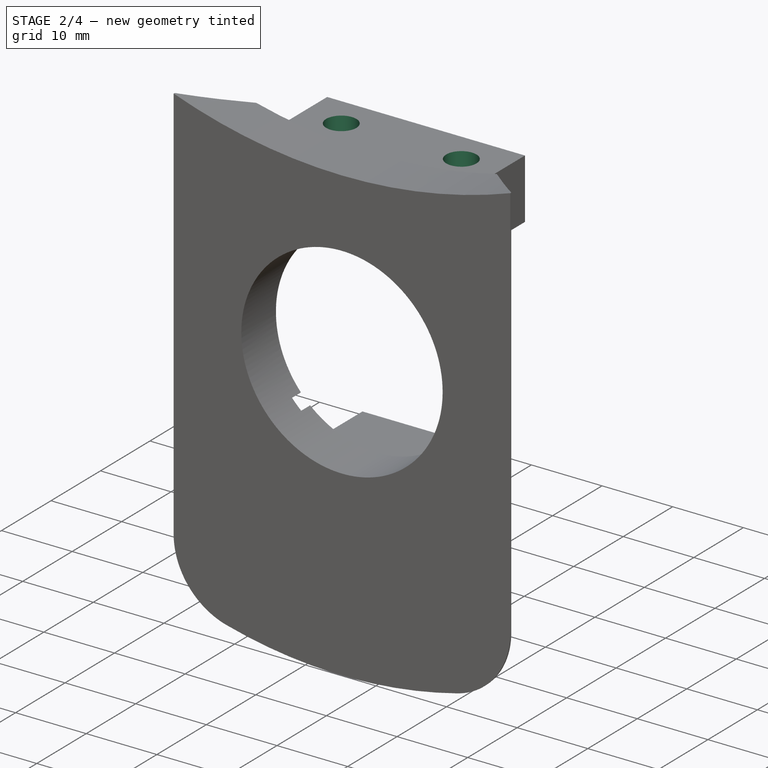
[diagram: stage 2 of 4 — iso view after this stage's code; geometry added in this stage tinted green]
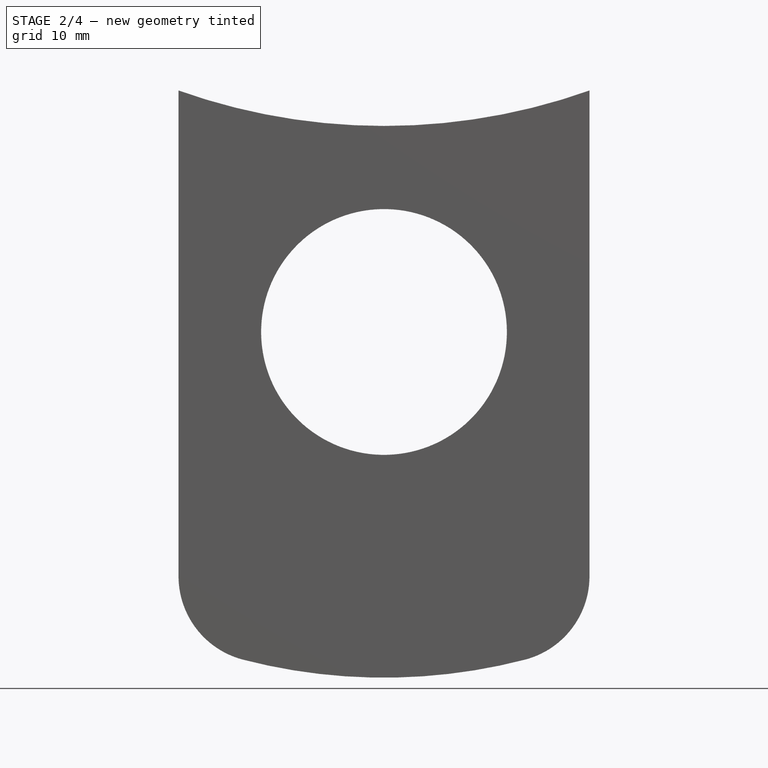
[diagram: stage 2 of 4 — front view after this stage's code; geometry added in this stage tinted green]
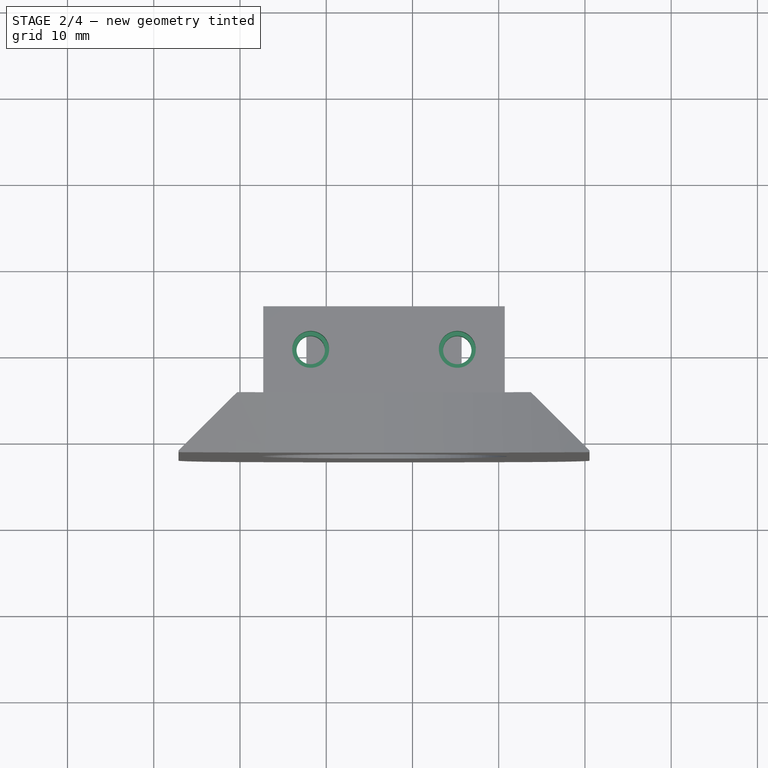
[diagram: stage 2 of 4 — top view after this stage's code; geometry added in this stage tinted green]
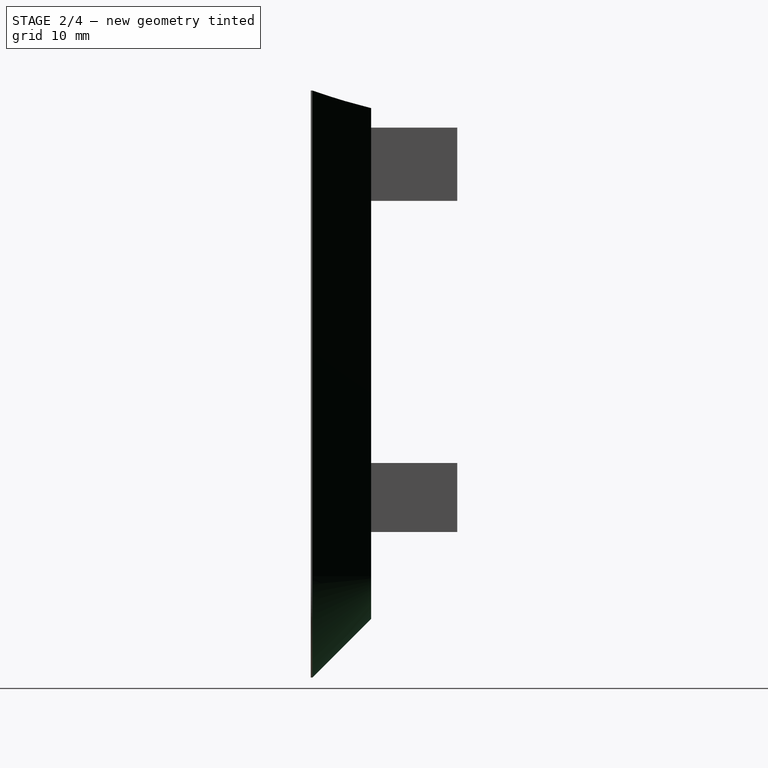
[diagram: stage 2 of 4 — right view after this stage's code; geometry added in this stage tinted green]
FEATURE [PartDesign::Point] DatumPoint
  AttacherType = Attacher::AttachEnginePoint
  AttachmentSupport = -> [Binder]
  InvalidShape = false
  MapMode = 37
  Placement = pos=(126.699,106,101.103) rot=(0,0,1;0rad)
  Support = -> [Binder]
  TreeRank = 495
  ValidateShape = false
FEATURE [Sketcher::SketchObject] Sketch003  label="HeatSet_sk"
  ArcFitTolerance = 1e-06
  AttachmentSupport = -> [Pad001]
  ExternalBSplineMaxDegree = 5
  ExternalBSplineTolerance = 0.0001
  ExternalGeometry = -> [DatumPoint,Pad001]
  FullyConstrained = true
  InternalTolerance = 1e-06
  InvalidShape = false
  MakeInternals = false
  MapMode = 5
  Placement = pos=(0,-5.54e-14,124.803) rot=(0,0,1;0rad)
  Support = -> [Pad001]
  TreeRank = 494
  ValidateShape = false
  expr: Constraints[3] = <<Clamp_pd>>.Length / 2
  expr: Constraints[5] = .Constraints.HoleSpacing / 2
  sketch-geometry (2):
    g0: Circle CenterX=118.199 CenterY=109.857 CenterZ=0 NormalX=0 NormalY=0 NormalZ=1 AngleXU=0 Radius=2.14
    g1: Circle CenterX=135.199 CenterY=109.857 CenterZ=0 NormalX=0 NormalY=0 NormalZ=1 AngleXU=0 Radius=2.14
  constraints (6):
    c: Equal(g1,g0)
    c: Diameter(g0) = 4.28
    c: Horizontal(g0,g1)
    c: DistanceY(g0,g-4) = 5
    c: DistanceX(g0,g1) = 17  'HoleSpacing'
    c: DistanceX(g-3,g1) = 8.5
FEATURE [PartDesign::Pocket] Pocket001  label="HeatSet_pk"
  AddSubType = 1
  AlongSketchNormal = false
  AutoTaperInnerAngle = true
  BaseFeature = -> Pad001
  CheckUpToFaceLimits = true
  ClaimChildren = false
  Direction = (0,4e-16,-1)
  Fit = 0
  FitJoin = 0
  InnerFit = 0
  InnerFitJoin = 0
  InvalidShape = false
  Length = 4
  Length2 = 10
  Linearize = true
  NewSolid = false
  Profile = -> Sketch003
  ReferenceAxis = -> Sketch003 [N_Axis]
  Suppress = false
  TaperInnerAngle = 0
  TaperInnerAngleRev = 0
  TreeRank = 496
  Type = 0
  ValidateShape = true
  _ProfileBasedVersion = 1
  _Version = 1
FEATURE [Sketcher::SketchObject] Sketch004  label="M3throughHole_sk"
  ArcFitTolerance = 1e-06
  AttachmentSupport = -> [Pocket001]
  ExternalBSplineMaxDegree = 5
  ExternalBSplineTolerance = 0.0001
  ExternalGeometry = -> [Pocket001]
  FullyConstrained = true
  InternalTolerance = 1e-06
  InvalidShape = false
  MakeInternals = false
  MapMode = 5
  Placement = pos=(0,0,120.803) rot=(0,0,1;0rad)
  Support = -> [Pocket001]
  TreeRank = 497
  ValidateShape = false
  sketch-geometry (2):
    g0: Circle CenterX=118.199 CenterY=109.857 CenterZ=0 NormalX=0 NormalY=0 NormalZ=1 AngleXU=0 Radius=1.65
    g1: Circle CenterX=135.199 CenterY=109.857 CenterZ=0 NormalX=0 NormalY=0 NormalZ=1 AngleXU=0 Radius=1.65
  constraints (4):
    c: Coincident(g0,g-3)
    c: Coincident(g1,g-4)
    c: Equal(g1,g0)
    c: Diameter(g0) = 3.3
FEATURE [PartDesign::Pocket] Pocket002  label="M3throughHole_pk"
  AddSubType = 1
  AlongSketchNormal = false
  AutoTaperInnerAngle = true
  BaseFeature = -> Pocket001
  CheckUpToFaceLimits = true
  ClaimChildren = false
  Direction = (0,0,-1)
  Fit = 0
  FitJoin = 0
  InnerFit = 0
  InnerFitJoin = 0
  InvalidShape = false
  Length = 5
  Length2 = 10
  Linearize = true
  NewSolid = false
  Profile = -> Sketch004
  ReferenceAxis = -> Sketch004 [N_Axis]
  Suppress = false
  TaperInnerAngle = 0
  TaperInnerAngleRev = 0
  TreeRank = 498
  Type = 0
  ValidateShape = true
  _ProfileBasedVersion = 1
  _Version = 1
FEATURE [PartDesign::Chamfer] Chamfer
  AddSubType = 0
  Angle = 45
  Base = -> Pocket002 [Edge16,Edge17,Edge15,Edge7,Edge4]
  BaseFeature = -> Pocket002
  ChamferType = 0
  FlipDirection = false
  InvalidShape = false
  NewSolid = false
  Size = 6.8
  Size2 = 1
  SupportTransform = false
  Suppress = false
  TreeRank = 499
  UseAllEdges = false
  ValidateShape = true
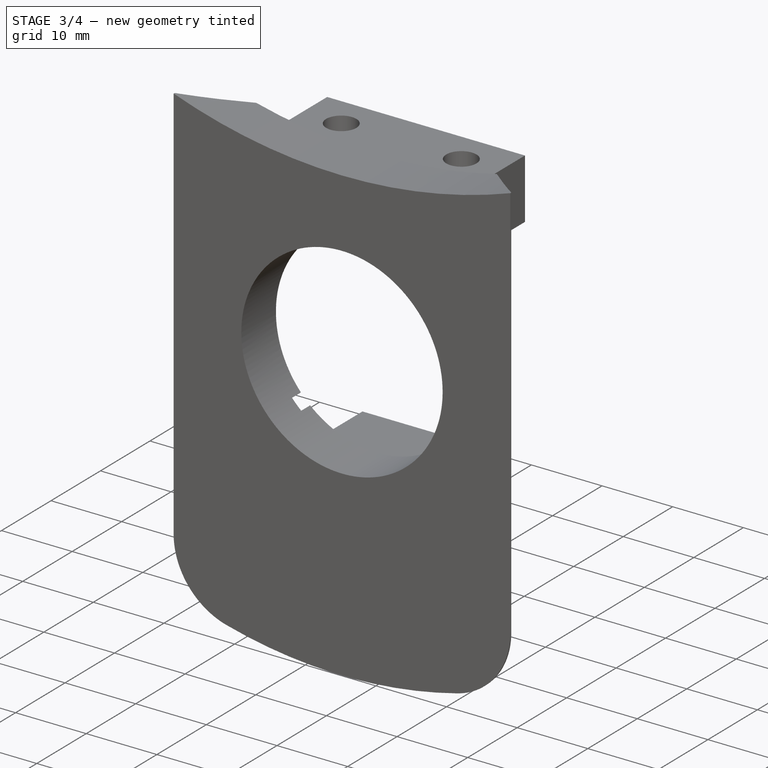
[diagram: stage 3 of 4 — iso view after this stage's code; geometry added in this stage tinted green]
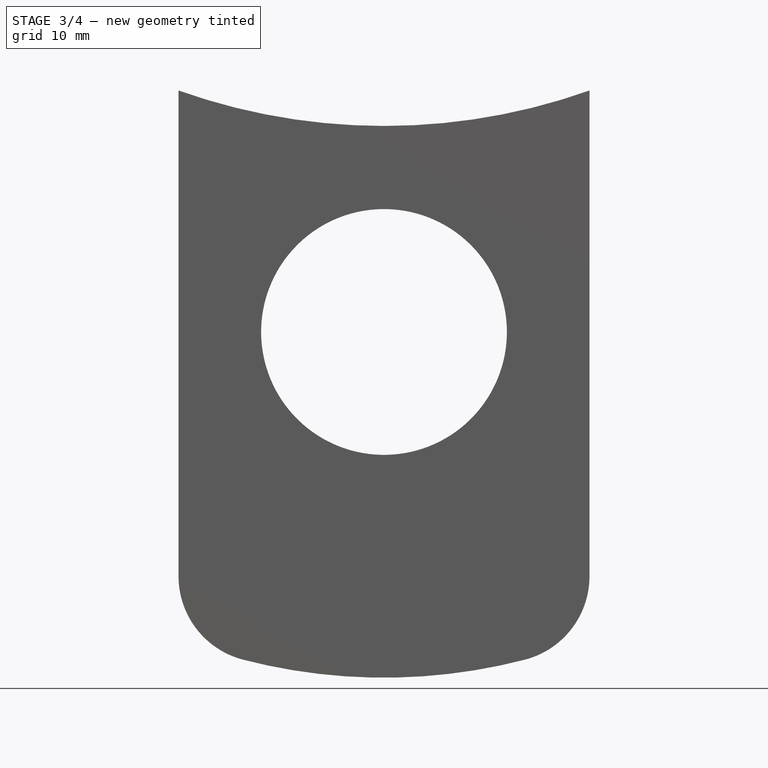
[diagram: stage 3 of 4 — front view after this stage's code; geometry added in this stage tinted green]
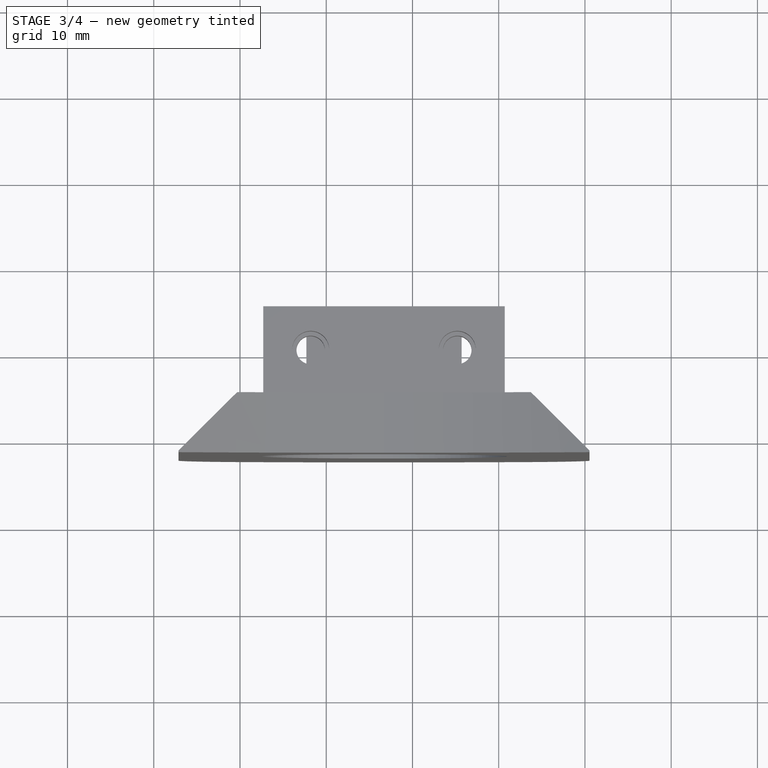
[diagram: stage 3 of 4 — top view after this stage's code; geometry added in this stage tinted green]
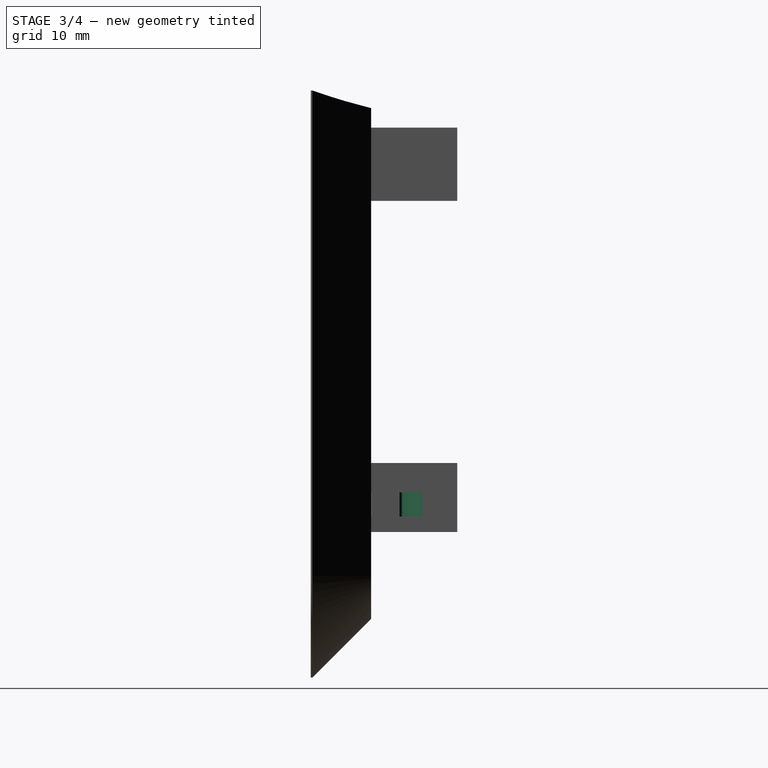
[diagram: stage 3 of 4 — right view after this stage's code; geometry added in this stage tinted green]
FEATURE [Sketcher::SketchObject] Sketch005  label="led-pocket_sk"
  ArcFitTolerance = 1e-06
  AttachmentOffset = pos=(0,70,0) rot=(1,0,0;0.349066rad)
  AttachmentSupport = -> [Chamfer]
  ExternalBSplineMaxDegree = 5
  ExternalBSplineTolerance = 0.0001
  ExternalGeometry = -> [DatumPoint,Chamfer]
  FullyConstrained = true
  InternalTolerance = 1e-06
  InvalidShape = false
  MakeInternals = false
  MapMode = 5
  Placement = pos=(-4.384e-13,104.857,70) rot=(0,0.819152,0.573576;3.14159rad)
  Support = -> [Chamfer]
  TreeRank = 500
  ValidateShape = false
  expr: Constraints[8] = .Constraints.led_width / 2
  sketch-geometry (5):
    g0: LineSegment StartX=-138.699 StartY=7.11798 StartZ=0 EndX=-114.699 EndY=7.11798 EndZ=0
    g1: LineSegment StartX=-114.699 StartY=7.11798 StartZ=0 EndX=-114.699 EndY=0.617976 EndZ=0
    g2: LineSegment StartX=-114.699 StartY=0.617976 StartZ=0 EndX=-138.699 EndY=0.617976 EndZ=0
    g3: LineSegment StartX=-138.699 StartY=0.617976 StartZ=0 EndX=-138.699 EndY=7.11798 EndZ=0
    g4: GeomPoint [constr] X=-114.699 Y=0.617976 Z=0
  constraints (14):
    c: Horizontal(g0)
    c: Horizontal(g2)
    c: Vertical(g1)
    c: Vertical(g3)
    c: PointOnObject(g4,g1)
    c: PointOnObject(g4,g2)
    c: Coincident(g3,g0)
    c: Coincident(g0,g1)
    c: DistanceX(g-3,g0) = 12
    c: DistanceY(g2,g0) = 6.5
    c: DistanceY(g0,g-3) = 22.5
    c: Coincident(g3,g2)
    c: Coincident(g1,g2)
    c: DistanceX(g0,g0) = 24  'led_width'
FEATURE [PartDesign::Pocket] Pocket003  label="led-pocket_pk"
  AddSubType = 1
  AlongSketchNormal = false
  AutoTaperInnerAngle = false
  BaseFeature = -> Chamfer
  CheckUpToFaceLimits = true
  ClaimChildren = false
  Direction = (3.9e-15,-0.939693,0.34202)
  Fit = 0
  FitJoin = 0
  InnerFit = 0
  InnerFitJoin = 0
  InvalidShape = false
  Length = 2.6
  Length2 = 10
  Linearize = true
  NewSolid = false
  Profile = -> Sketch005
  ReferenceAxis = -> Sketch005 [N_Axis]
  Suppress = false
  TaperInnerAngle = 0
  TaperInnerAngleRev = 0
  TreeRank = 501
  Type = 0
  ValidateShape = true
  _ProfileBasedVersion = 1
  _Version = 1
FEATURE [Sketcher::SketchObject] Sketch006  label="Cable_route_sk"
  ArcFitTolerance = 1e-06
  AttachmentOffset = pos=(-1,-8.3,4.6) rot=(0,0,1;0rad)
  AttachmentSupport = -> [Pocket003]
  ExternalBSplineMaxDegree = 5
  ExternalBSplineTolerance = 0.0001
  FullyConstrained = true
  InternalTolerance = 1e-06
  InvalidShape = false
  MakeInternals = false
  MapMode = 47
  Placement = pos=(134.699,106.557,82.503) rot=(0,0,1;0rad)
  Support = -> [Pocket003]
  TreeRank = 502
  ValidateShape = false
  sketch-geometry (2):
    g0: Circle CenterX=0 CenterY=0 CenterZ=0 NormalX=0 NormalY=0 NormalZ=1 AngleXU=0 Radius=1.9
    g1: Circle CenterX=0 CenterY=0 CenterZ=0 NormalX=0 NormalY=0 NormalZ=1 AngleXU=0 Radius=4.4
  constraints (4):
    c: Coincident(g0,g-1)
    c: Coincident(g1,g0)
    c: Radius(g0) = 1.9
    c: Radius(g1) = 4.4
FEATURE [PartDesign::Pocket] Pocket004  label="CableRouteRight_pk"
  AddSubType = 1
  AlongSketchNormal = false
  AutoTaperInnerAngle = true
  BaseFeature = -> Pocket003
  CheckUpToFaceLimits = true
  ClaimChildren = false
  Direction = (0,0,-1)
  Fit = 0
  FitJoin = 0
  InnerFit = 0
  InnerFitJoin = 0
  InvalidShape = false
  Length = 2.8
  Length2 = 10
  Linearize = true
  NewSolid = false
  Profile = -> Sketch006
  ReferenceAxis = -> Sketch006 [N_Axis]
  Suppress = false
  TaperInnerAngle = 0
  TaperInnerAngleRev = 0
  TreeRank = 503
  Type = 0
  ValidateShape = true
  _ProfileBasedVersion = 1
  _Version = 1
FEATURE [Sketcher::SketchObject] Sketch007  label="Cable_route2_sk"
  ArcFitTolerance = 1e-06
  AttachmentOffset = pos=(1,-8.3,2) rot=(0,0,1;0rad)
  AttachmentSupport = -> [Pocket004]
  ExternalBSplineMaxDegree = 5
  ExternalBSplineTolerance = 0.0001
  FullyConstrained = true
  InternalTolerance = 1e-06
  InvalidShape = false
  MakeInternals = false
  MapMode = 7
  Placement = pos=(118.699,106.557,79.903) rot=(0,0,1;0rad)
  Support = -> [Pocket004]
  TreeRank = 504
  ValidateShape = false
  sketch-geometry (2):
    g0: Circle CenterX=0 CenterY=0 CenterZ=0 NormalX=0 NormalY=0 NormalZ=1 AngleXU=0 Radius=1.9
    g1: Circle CenterX=0 CenterY=0 CenterZ=0 NormalX=0 NormalY=0 NormalZ=1 AngleXU=0 Radius=4.4
  constraints (4):
    c: Coincident(g0,g-1)
    c: Coincident(g1,g0)
    c: Radius(g0) = 1.9
    c: Radius(g1) = 4.4
FEATURE [PartDesign::Pocket] Pocket005  label="CableRouteLeft_pk"
  AddSubType = 1
  AlongSketchNormal = false
  AutoTaperInnerAngle = true
  BaseFeature = -> Pocket004
  CheckUpToFaceLimits = true
  ClaimChildren = false
  Direction = (0,4e-16,-1)
  Fit = 0
  FitJoin = 0
  InnerFit = 0
  InnerFitJoin = 0
  InvalidShape = false
  Length = 2.8
  Length2 = 10
  Linearize = true
  NewSolid = false
  Profile = -> Sketch007
  ReferenceAxis = -> Sketch007 [N_Axis]
  Reversed = true
  Suppress = false
  TaperInnerAngle = 0
  TaperInnerAngleRev = 0
  TreeRank = 505
  Type = 0
  ValidateShape = true
  _ProfileBasedVersion = 1
  _Version = 1
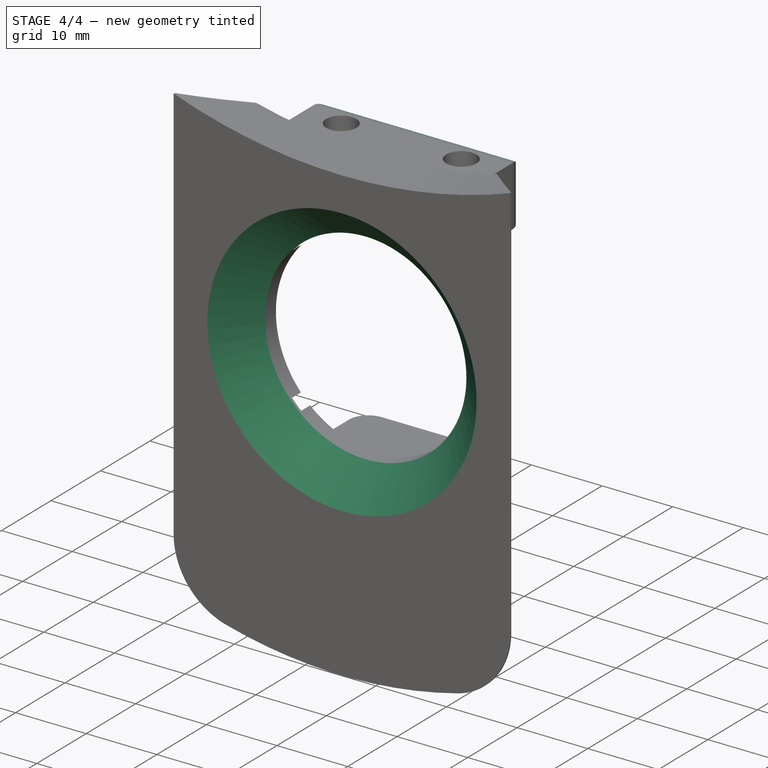
[diagram: stage 4 of 4 — iso view after this stage's code; geometry added in this stage tinted green]
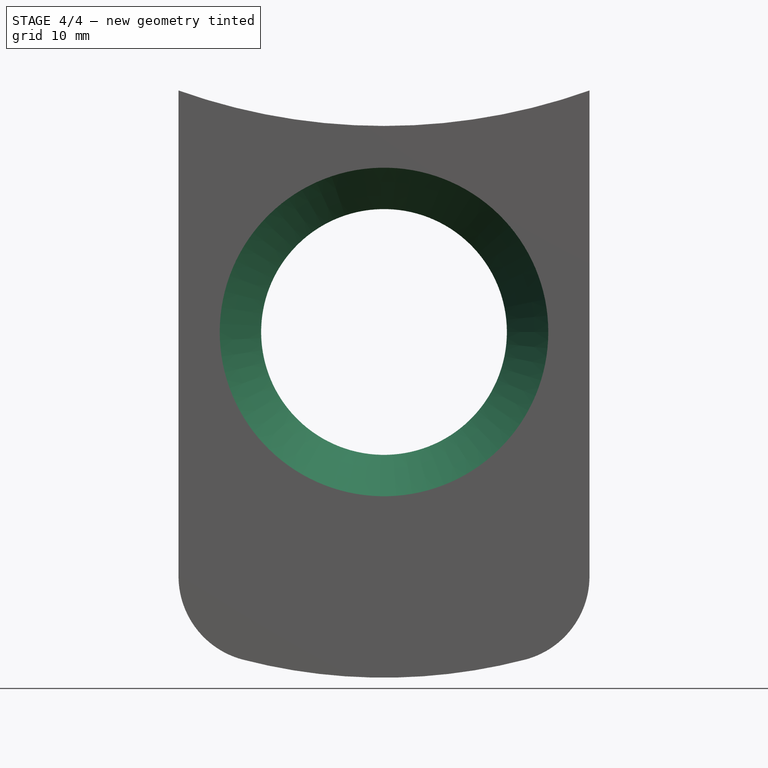
[diagram: stage 4 of 4 — front view after this stage's code; geometry added in this stage tinted green]
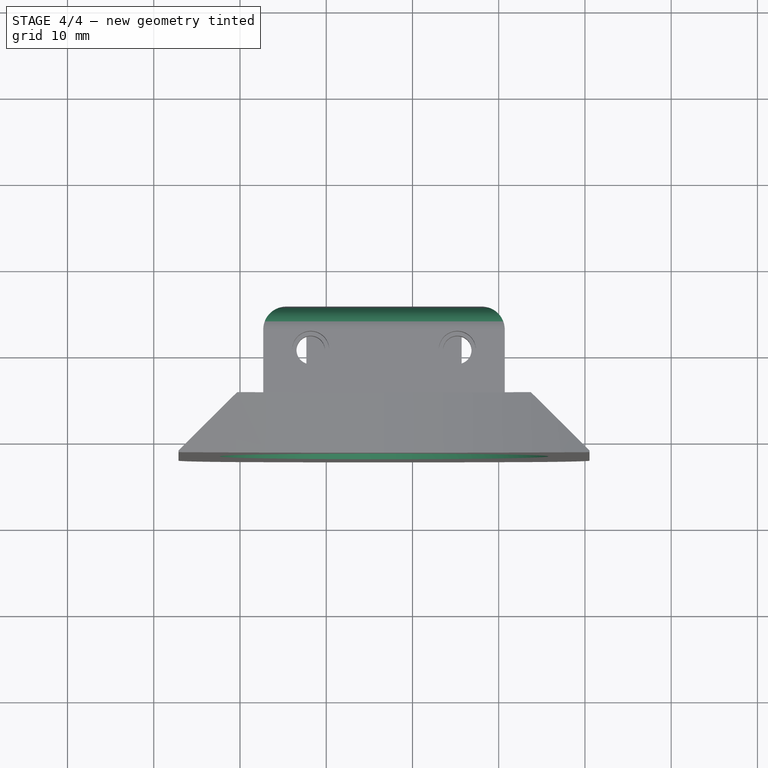
[diagram: stage 4 of 4 — top view after this stage's code; geometry added in this stage tinted green]
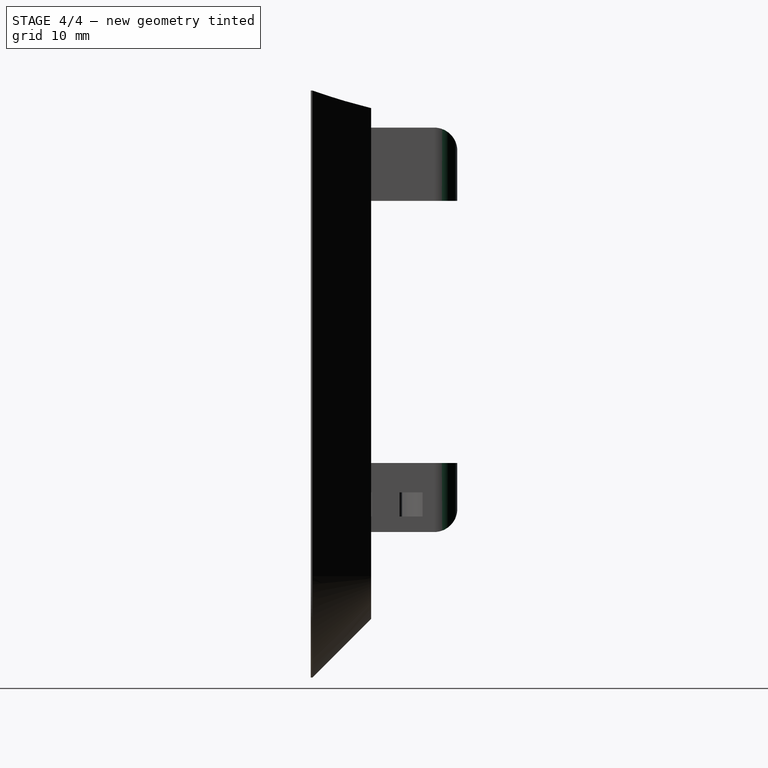
[diagram: stage 4 of 4 — right view after this stage's code; geometry added in this stage tinted green]
FEATURE [PartDesign::Fillet] Fillet
  AddSubType = 0
  Base = -> Pocket005 [Edge135,Edge105,Edge125,Edge79,Edge84,Edge88]
  BaseFeature = -> Pocket005
  InvalidShape = false
  NewSolid = false
  Radius = 2.7
  SupportTransform = false
  Suppress = false
  TreeRank = 506
  UseAllEdges = false
  ValidateShape = true
FEATURE [PartDesign::Chamfer] Chamfer001
  AddSubType = 0
  Angle = 45
  Base = -> Fillet [Edge77]
  BaseFeature = -> Fillet
  ChamferType = 0
  FlipDirection = false
  InvalidShape = false
  NewSolid = false
  Size = 4.8
  Size2 = 1
  SupportTransform = false
  Suppress = false
  TreeRank = 507
  UseAllEdges = false
  ValidateShape = true
FEATURE [PartDesign::Chamfer] Chamfer002
  AddSubType = 0
  Angle = 45
  Base = -> Chamfer001 [Edge53]
  BaseFeature = -> Chamfer001
  ChamferType = 0
  FlipDirection = false
  InvalidShape = false
  NewSolid = false
  Size = 1.4
  Size2 = 1
  SupportTransform = false
  Suppress = false
  TreeRank = 508
  UseAllEdges = false
  ValidateShape = true
  _Siblings = -> [Chamfer001,Fillet,Pocket005,Pocket004,Pocket003,Chamfer,Pocket002,Pocket001,Pad001,Pocket,Pad]
FEATURE [PartDesign::Body] Body  label="FrontPlate"
  AutoGroupSolids = true
  ClaimAllChildren = false
  ExportMode = 0
  Group = -> [Binder,Binder001,DatumPlane,Import,Sketch,Sketch001,Sketch002,Sketch003,DatumPoint,Sketch004,Sketch005,Sketch006,Sketch007,Pad,Pocket,Pad001,Pocket001,Pocket002,Chamfer,Pocket003,Pocket004,Pocket005,Fillet,Chamfer001,Chamfer002]
  InvalidShape = false
  Origin = -> Origin016
  SingleSolid = true
  Tip = -> Chamfer002
  TreeRank = 481
  ValidateShape = false
  _ExportChildren = -> [Binder,Binder001,DatumPlane,Import,DatumPoint,Chamfer002]
  _GroupVersion = 1
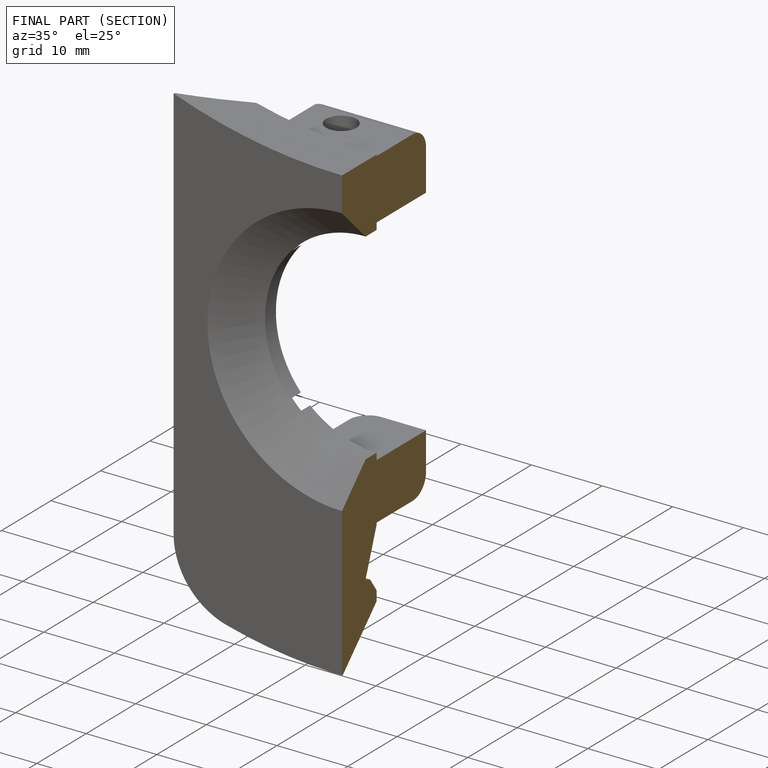
[diagram: finished part — half-section view (interior)]
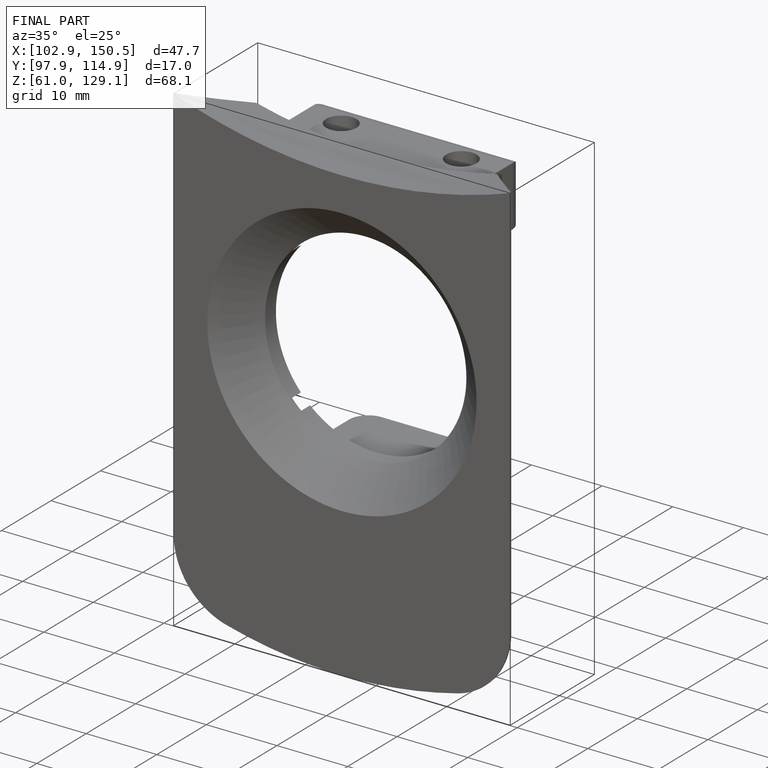
[diagram: finished part — iso view with bounding-box wireframe]
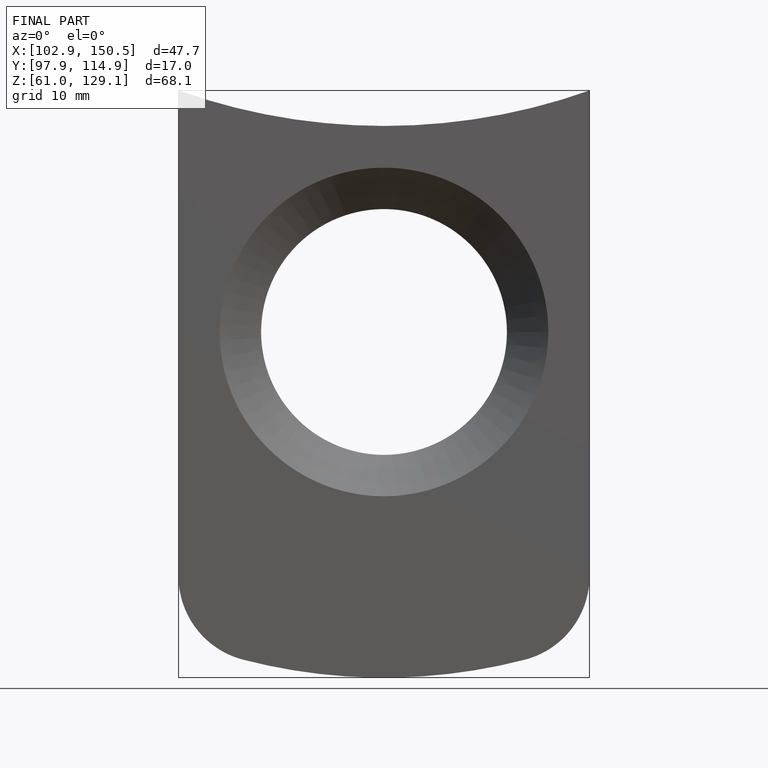
[diagram: finished part — front view with bounding-box wireframe]
